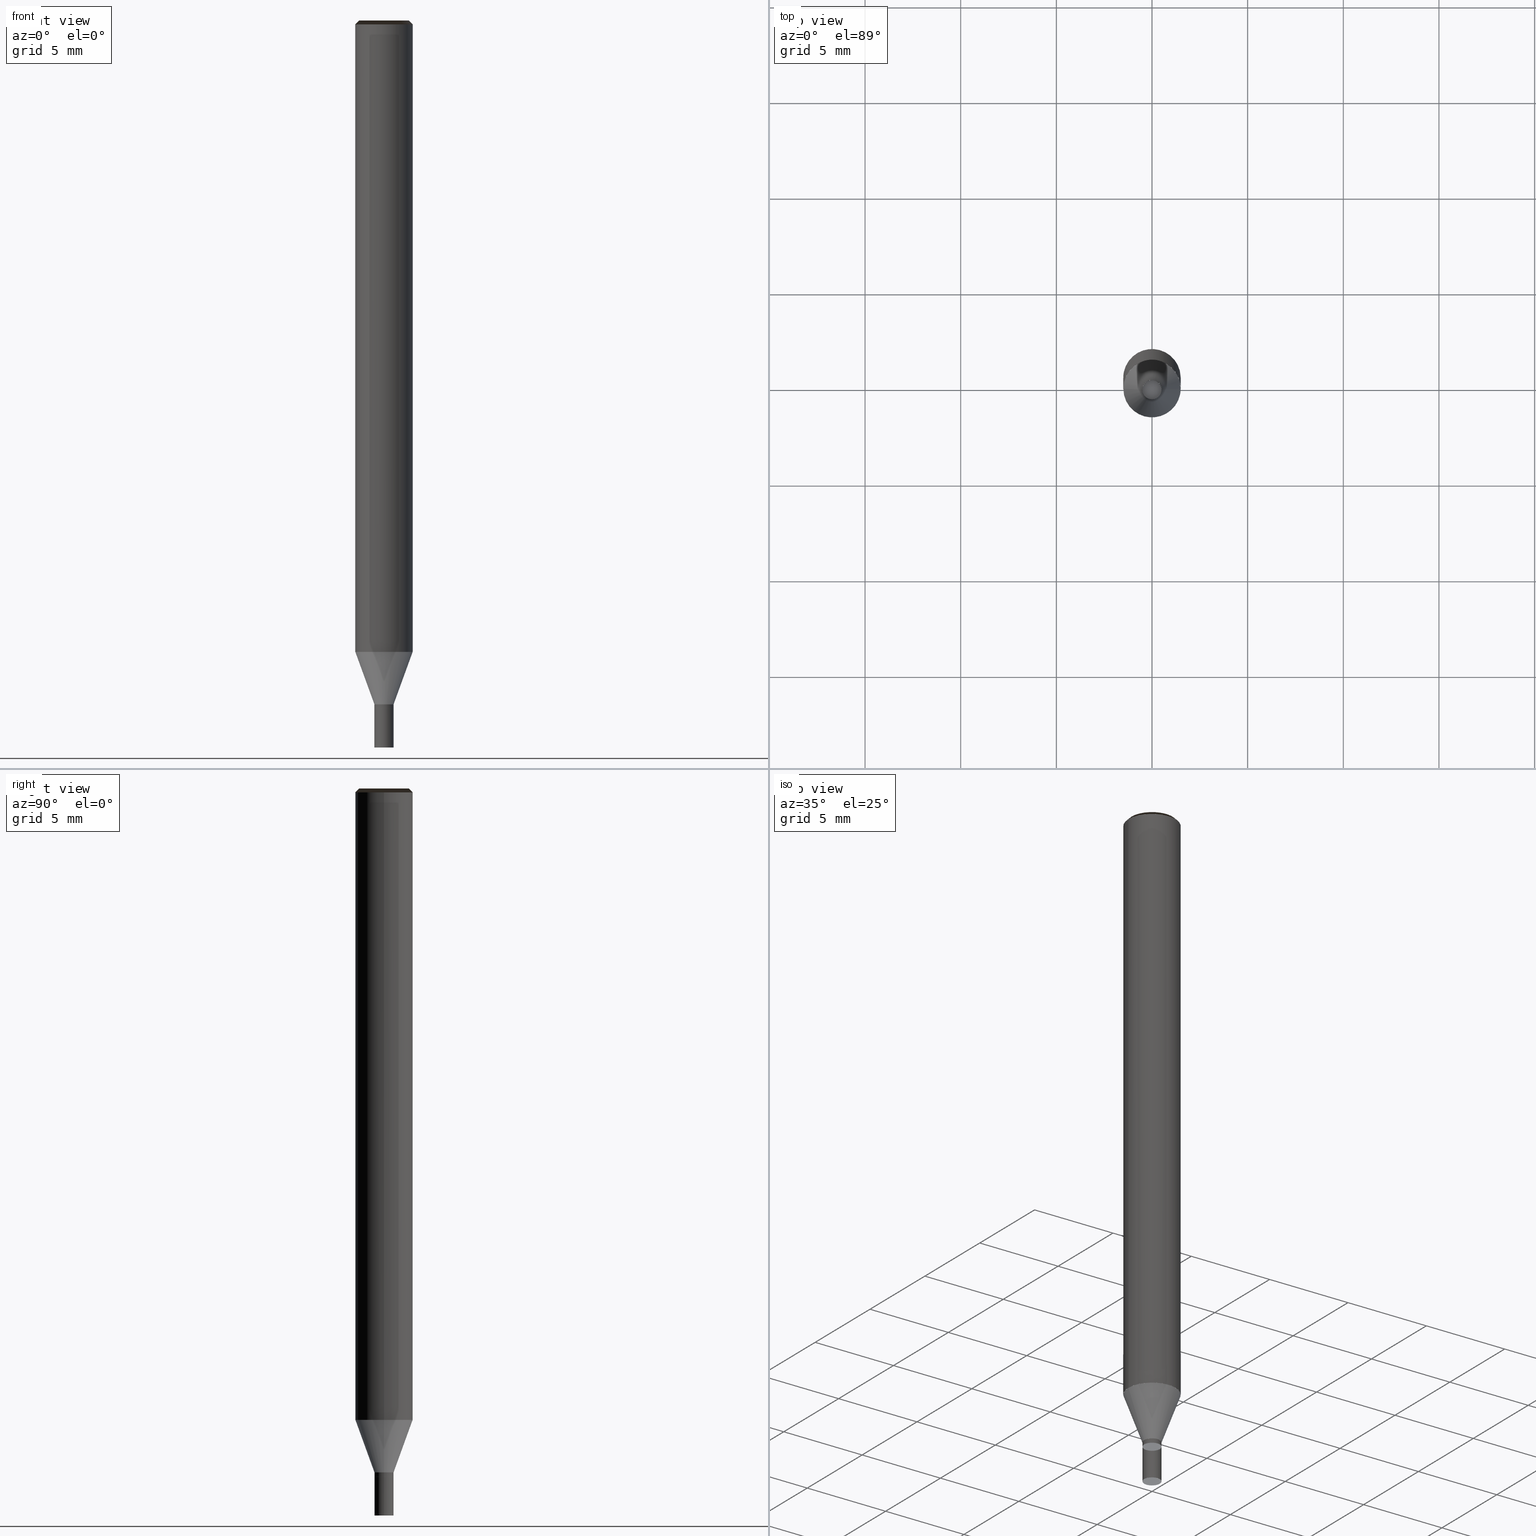
[diagram: canonical four-view strip — front | top / right | iso, engineering-drawing reading convention]
A machine part, canonical four-view strip (front | top / right | iso — engineering-drawing reading convention). The complete STEP part file that produces these views, byte-faithful:
ISO-10303-21;
HEADER;
/* Generated by ISBE GmbH (www.isbe.de) */
/* OPTION: using custom schema-name function */

FILE_DESCRIPTION(
/* description */ (''),
/* implementation_level */ '2;1');

FILE_NAME(
/*name*/ 'Drawing No  1070100',
/*time_stamp*/'2021-9-28T14:5:15',
/*author*/ ('ISBE GmbH'),
/*organization*/ ('ISBE GmbH'),
/*preprocessor_version*/ 'STEP IO v1.0',
/*originating_system*/ '',
/*authorisation*/ '');

FILE_SCHEMA (('AUTOMOTIVE_DESIGN'));
ENDSEC;

DATA;
#10=SHAPE_DEFINITION_REPRESENTATION(#11,#57);
#11=PRODUCT_DEFINITION_SHAPE('Document','',#13);
#12=PRODUCT_DEFINITION_CONTEXT('3D Mechanical Parts',#17,'design');
#13=PRODUCT_DEFINITION('A','First version',#14,#12);
#14=PRODUCT_DEFINITION_FORMATION_WITH_SPECIFIED_SOURCE('A','First version',#19,.MADE.);
#15=PRODUCT_RELATED_PRODUCT_CATEGORY('tool','tool',(#19));
#16=APPLICATION_PROTOCOL_DEFINITION('Draft International Standard', 'automotive_design',1999,#17);
#17=APPLICATION_CONTEXT('data for automotive mechanical design processes');
#18=PRODUCT_CONTEXT('3D Mechanical Parts',#17,'mechanical');
#19=PRODUCT('Document','Document','ISBE converted to STEP',(#18));
#20=(
LENGTH_UNIT()
NAMED_UNIT(*)
SI_UNIT(.MILLI.,.METRE.)
);
#21=(
NAMED_UNIT(*)
PLANE_ANGLE_UNIT()
SI_UNIT($,.RADIAN.)
);
#22=DIMENSIONAL_EXPONENTS(0.,0.,0.,0.,0.,0.,0.);
#23=PLANE_ANGLE_MEASURE_WITH_UNIT(PLANE_ANGLE_MEASURE(0.01745329252),#21);
#24=(
CONVERSION_BASED_UNIT('DEGREES',#23)
NAMED_UNIT(#22)
PLANE_ANGLE_UNIT()
);
#25=(
NAMED_UNIT(*)
SI_UNIT($,.STERADIAN.)
SOLID_ANGLE_UNIT()
);
#26=UNCERTAINTY_MEASURE_WITH_UNIT(LENGTH_MEASURE(0.001),#20, 'DISTANCE_ACCURACY_VALUE', 'Maximum model space distance between geometric entities at asserted connectivities');
#27=(
GEOMETRIC_REPRESENTATION_CONTEXT(3)
GLOBAL_UNCERTAINTY_ASSIGNED_CONTEXT((#26))
GLOBAL_UNIT_ASSIGNED_CONTEXT((#25,#24,#20))
REPRESENTATION_CONTEXT('ID1','3D')
);
#28=CARTESIAN_POINT('',(0.0,0.0,0.0));
#29=DIRECTION('',(1.0,0.0,0.0));
#30=DIRECTION('',(0.0,0.0,1.0));
#31=AXIS2_PLACEMENT_3D('',#28,#30,#29);
#32=CARTESIAN_POINT('',(0.0,0.0,0.0));
#33=DIRECTION('',(1.0,0.0,0.0));
#34=DIRECTION('',(0.0,0.0,1.0));
#35=AXIS2_PLACEMENT_3D('',#32,#34,#33);
#36=CARTESIAN_POINT('',(0.0,0.0,0.0));
#37=DIRECTION('',(1.0,0.0,0.0));
#38=DIRECTION('',(0.0,0.0,1.0));
#39=AXIS2_PLACEMENT_3D('',#36,#38,#37);
#40=CARTESIAN_POINT('',(0.0,0.0,0.0));
#41=DIRECTION('',(0.0,0.0,1.0));
#42=DIRECTION('',(1.0,0.0,0.0));
#43=AXIS2_PLACEMENT_3D('MCS',#40,#42,#41);
#44=CARTESIAN_POINT('',(0.0,0.0,33.0));
#45=DIRECTION('',(0.0,0.0,1.0));
#46=DIRECTION('',(1.0,0.0,0.0));
#47=AXIS2_PLACEMENT_3D('PCS',#44,#46,#45);
#48=CARTESIAN_POINT('',(0.0,0.0,-5.0));
#49=DIRECTION('',(0.0,0.0,1.0));
#50=DIRECTION('',(1.0,0.0,0.0));
#51=AXIS2_PLACEMENT_3D('CIP',#48,#50,#49);
#52=CARTESIAN_POINT('',(0.0,-0.5,-5.0));
#53=DIRECTION('',(0.0,0.0,1.0));
#54=DIRECTION('',(1.0,0.0,0.0));
#55=AXIS2_PLACEMENT_3D('CRP',#52,#54,#53);
#57=SHAPE_REPRESENTATION('Document',(#31,#35,#39,#43,#47,#51,#55),#27);
#58=DIRECTION('',(1.0,0.0,0.0));
#59=DIRECTION('',(0.0,0.0,1.0));
#60=CARTESIAN_POINT('',(-0.0099979998,-0.0002,-5.0));
#61=CARTESIAN_POINT('',(-0.009957388068,-0.002230180448,-5.0));
#62=CARTESIAN_POINT('',(-0.009642194725,-0.017986695326,-5.0));
#63=CARTESIAN_POINT('',(-0.009419342894,-0.029127058161,-5.0));
#64=CARTESIAN_POINT('',(-0.009206552389,-0.039764455291,-5.0));
#65=CARTESIAN_POINT('',(-0.00899738358,-0.050220803835,-5.0));
#66=CARTESIAN_POINT('',(-0.008789953749,-0.06059022086,-5.0));
#67=CARTESIAN_POINT('',(-0.008583497652,-0.070910960961,-5.0));
#68=CARTESIAN_POINT('',(-0.008377643043,-0.081201632637,-5.0));
#69=CARTESIAN_POINT('',(-0.008172186465,-0.09147240681,-5.0));
#70=CARTESIAN_POINT('',(-0.007967007117,-0.101729322195,-5.0));
#71=CARTESIAN_POINT('',(-0.00776202868,-0.111976194026,-5.0));
#72=CARTESIAN_POINT('',(-0.007557200537,-0.122215552706,-5.0));
#73=CARTESIAN_POINT('',(-0.007352487778,-0.132449143356,-5.0));
#74=CARTESIAN_POINT('',(-0.007147865539,-0.14267820886,-5.0));
#75=CARTESIAN_POINT('',(-0.00694331563,-0.152903658591,-5.0));
#76=CARTESIAN_POINT('',(-0.006738824433,-0.16312617334,-5.0));
#77=CARTESIAN_POINT('',(-0.006534381548,-0.173346272951,-5.0));
#78=CARTESIAN_POINT('',(-0.006329978897,-0.183564361258,-5.0));
#79=CARTESIAN_POINT('',(-0.006125610109,-0.19378075676,-5.0));
#80=CARTESIAN_POINT('',(-0.005921270092,-0.20399571404,-5.0));
#81=CARTESIAN_POINT('',(-0.005716954724,-0.214209439044,-5.0));
#82=CARTESIAN_POINT('',(-0.005512660639,-0.224422100169,-5.0));
#83=CARTESIAN_POINT('',(-0.005308385054,-0.234633836452,-5.0));
#84=CARTESIAN_POINT('',(-0.005104125653,-0.244844763705,-5.0));
#85=CARTESIAN_POINT('',(-0.004899880491,-0.255054979171,-5.0));
#86=CARTESIAN_POINT('',(-0.004695647921,-0.265264565103,-5.0));
#87=CARTESIAN_POINT('',(-0.004491426544,-0.275473591549,-5.0));
#88=CARTESIAN_POINT('',(-0.004287215158,-0.285682118529,-5.0));
#89=CARTESIAN_POINT('',(-0.004083012729,-0.295890197777,-5.0));
#90=CARTESIAN_POINT('',(-0.003878818359,-0.306097874114,-5.0));
#91=CARTESIAN_POINT('',(-0.003674631268,-0.316305186575,-5.0));
#92=CARTESIAN_POINT('',(-0.003470450773,-0.326512169305,-5.0));
#93=CARTESIAN_POINT('',(-0.003266276274,-0.336718852309,-5.0));
#94=CARTESIAN_POINT('',(-0.003062107242,-0.346925262055,-5.0));
#95=CARTESIAN_POINT('',(-0.002857943206,-0.357131421985,-5.0));
#96=CARTESIAN_POINT('',(-0.002653783751,-0.367337352933,-5.0));
#97=CARTESIAN_POINT('',(-0.002449628505,-0.377543073478,-5.0));
#98=CARTESIAN_POINT('',(-0.002245477135,-0.387748600244,-5.0));
#99=CARTESIAN_POINT('',(-0.002041329344,-0.397953948145,-5.0));
#100=CARTESIAN_POINT('',(-0.001837184862,-0.408159130606,-5.0));
#101=CARTESIAN_POINT('',(-0.001633043447,-0.418364159738,-5.0));
#102=CARTESIAN_POINT('',(-0.00142890488,-0.428569046501,-5.0));
#103=CARTESIAN_POINT('',(-0.001224768962,-0.438773800831,-5.0));
#104=CARTESIAN_POINT('',(-0.001020635512,-0.448978431764,-5.0));
#105=CARTESIAN_POINT('',(-0.000816504367,-0.459182947529,-5.0));
#106=CARTESIAN_POINT('',(-0.000612375374,-0.469387355642,-5.0));
#107=CARTESIAN_POINT('',(-0.000408248398,-0.479591662976,-5.0));
#108=CARTESIAN_POINT('',(-0.000204123312,-0.489795875833,-5.0));
#109=CARTESIAN_POINT('',(0.0,-0.5,-5.0));
#110=CARTESIAN_POINT('',(0.028148537708,-0.499207031025,-4.951219512195));
#111=CARTESIAN_POINT('',(0.056207791747,-0.4968306393,-4.90243902439));
#112=CARTESIAN_POINT('',(0.084088761646,-0.492878362443,-4.853658536585));
#113=CARTESIAN_POINT('',(0.111703012429,-0.487362736588,-4.80487804878));
#114=CARTESIAN_POINT('',(0.138962955119,-0.480301256614,-4.756097560976));
#115=CARTESIAN_POINT('',(0.16578212456,-0.471716320659,-4.707317073171));
#116=CARTESIAN_POINT('',(0.192075453676,-0.461635159076,-4.658536585366));
#117=CARTESIAN_POINT('',(0.21775954329,-0.450089748057,-4.609756097561));
#118=CARTESIAN_POINT('',(0.242752926656,-0.437116708214,-4.560975609756));
#119=CARTESIAN_POINT('',(0.266976327865,-0.422757188419,-4.512195121951));
#120=CARTESIAN_POINT('',(0.290352913294,-0.407056735286,-4.463414634146));
#121=CARTESIAN_POINT('',(0.312808535315,-0.390065148705,-4.414634146341));
#122=CARTESIAN_POINT('',(0.334271967481,-0.37183632388,-4.365853658537));
#123=CARTESIAN_POINT('',(0.35467513045,-0.35242808038,-4.317073170732));
#124=CARTESIAN_POINT('',(0.37395330792,-0.331901978746,-4.268292682927));
#125=CARTESIAN_POINT('',(0.392045351906,-0.310323125225,-4.219512195122));
#126=CARTESIAN_POINT('',(0.408893876688,-0.287759965261,-4.170731707317));
#127=CARTESIAN_POINT('',(0.424445440837,-0.264284066399,-4.121951219512));
#128=CARTESIAN_POINT('',(0.438650716722,-0.239969891276,-4.073170731707));
#129=CARTESIAN_POINT('',(0.45146464697,-0.214894561439,-4.024390243902));
#130=CARTESIAN_POINT('',(0.462846587385,-0.189137612721,-3.975609756098));
#131=CARTESIAN_POINT('',(0.472760435865,-0.162780742967,-3.926829268293));
#132=CARTESIAN_POINT('',(0.481174746911,-0.135907552898,-3.878048780488));
#133=CARTESIAN_POINT('',(0.488062831375,-0.108603280937,-3.829268292683));
#134=CARTESIAN_POINT('',(0.493402841106,-0.080954532847,-3.780487804878));
#135=CARTESIAN_POINT('',(0.497177838257,-0.053049007026,-3.731707317073));
#136=CARTESIAN_POINT('',(0.499375849004,-0.024975216337,-3.682926829268));
#137=CARTESIAN_POINT('',(0.499989901532,0.003177792638,-3.634146341463));
#138=CARTESIAN_POINT('',(0.499018048141,0.03132072205,-3.585365853659));
#139=CARTESIAN_POINT('',(0.496463371429,0.059364306018,-3.536585365854));
#140=CARTESIAN_POINT('',(0.492333974515,0.087219593774,-3.487804878049));
#141=CARTESIAN_POINT('',(0.486642955333,0.114798231803,-3.439024390244));
#142=CARTESIAN_POINT('',(0.479408365088,0.142012744088,-3.390243902439));
#143=CARTESIAN_POINT('',(0.470653151005,0.168776809572,-3.341463414634));
#144=CARTESIAN_POINT('',(0.460405083535,0.195005535961,-3.292682926829));
#145=CARTESIAN_POINT('',(0.448696668276,0.22061572899,-3.243902439024));
#146=CARTESIAN_POINT('',(0.435565042869,0.245526156306,-3.19512195122));
#147=CARTESIAN_POINT('',(0.4210518592,0.269657805124,-3.146341463415));
#148=CARTESIAN_POINT('',(0.405203151287,0.292934132848,-3.09756097561));
#149=CARTESIAN_POINT('',(0.388069189263,0.315281309857,-3.048780487805));
#150=CARTESIAN_POINT('',(0.36970431993,0.336628453677,-3.0));
#151=CARTESIAN_POINT('',(0.005172204981,-0.008558521814,-5.0));
#152=CARTESIAN_POINT('',(0.006910086957,-0.007508260798,-5.0));
#153=CARTESIAN_POINT('',(0.020398032445,0.000642962083,-5.0));
#154=CARTESIAN_POINT('',(0.029934443752,0.006406138848,-5.0));
#155=CARTESIAN_POINT('',(0.039040304644,0.011909119395,-5.0));
#156=CARTESIAN_POINT('',(0.04799118371,0.01731843917,-5.0));
#157=CARTESIAN_POINT('',(0.05686764736,0.022682787185,-5.0));
#158=CARTESIAN_POINT('',(0.065702442425,0.02802195346,-5.0));
#159=CARTESIAN_POINT('',(0.074511498214,0.033345564619,-5.0));
#160=CARTESIAN_POINT('',(0.083303521275,0.038658882322,-5.0));
#161=CARTESIAN_POINT('',(0.092083680889,0.043965030542,-5.0));
#162=CARTESIAN_POINT('',(0.100855242986,0.049265982991,-5.0));
#163=CARTESIAN_POINT('',(0.109620373649,0.054563048706,-5.0));
#164=CARTESIAN_POINT('',(0.118380566744,0.059857130482,-5.0));
#165=CARTESIAN_POINT('',(0.127136886209,0.065148871291,-5.0));
#166=CARTESIAN_POINT('',(0.135890110486,0.070438741573,-5.0));
#167=CARTESIAN_POINT('',(0.144640822351,0.075727093519,-5.0));
#168=CARTESIAN_POINT('',(0.153389466801,0.081014196057,-5.0));
#169=CARTESIAN_POINT('',(0.162136389528,0.086300258099,-5.0));
#170=CARTESIAN_POINT('',(0.170881863173,0.091585444412,-5.0));
#171=CARTESIAN_POINT('',(0.179626105668,0.096869886698,-5.0));
#172=CARTESIAN_POINT('',(0.188369293305,0.102153691498,-5.0));
#173=CARTESIAN_POINT('',(0.197111570236,0.107436945929,-5.0));
#174=CARTESIAN_POINT('',(0.205853055482,0.112719721916,-5.0));
#175=CARTESIAN_POINT('',(0.214593848178,0.118002079373,-5.0));
#176=CARTESIAN_POINT('',(0.223334031569,0.123284068605,-5.0));
#177=CARTESIAN_POINT('',(0.232073676064,0.128565732165,-5.0));
#178=CARTESIAN_POINT('',(0.240812841625,0.133847106288,-5.0));
#179=CARTESIAN_POINT('',(0.249551579632,0.139128222026,-5.0));
#180=CARTESIAN_POINT('',(0.25828993437,0.144409106141,-5.0));
#181=CARTESIAN_POINT('',(0.267027944207,0.149689781822,-5.0));
#182=CARTESIAN_POINT('',(0.275765642557,0.15497026926,-5.0));
#183=CARTESIAN_POINT('',(0.28450305865,0.16025058612,-5.0));
#184=CARTESIAN_POINT('',(0.29324021817,0.165530747925,-5.0));
#185=CARTESIAN_POINT('',(0.301977143775,0.170810768367,-5.0));
#186=CARTESIAN_POINT('',(0.310713855531,0.176090659573,-5.0));
#187=CARTESIAN_POINT('',(0.319450371274,0.181370432322,-5.0));
#188=CARTESIAN_POINT('',(0.328186706908,0.186650096224,-5.0));
#189=CARTESIAN_POINT('',(0.336922876661,0.191929659879,-5.0));
#190=CARTESIAN_POINT('',(0.345658893302,0.197209131004,-5.0));
#191=CARTESIAN_POINT('',(0.354394768322,0.202488516541,-5.0));
#192=CARTESIAN_POINT('',(0.36313051209,0.207767822759,-5.0));
#193=CARTESIAN_POINT('',(0.371866133985,0.213047055325,-5.0));
#194=CARTESIAN_POINT('',(0.380601642516,0.218326219381,-5.0));
#195=CARTESIAN_POINT('',(0.389337045415,0.2236053196,-5.0));
#196=CARTESIAN_POINT('',(0.398072349728,0.228884360241,-5.0));
#197=CARTESIAN_POINT('',(0.406807561888,0.23416334519,-5.0));
#198=CARTESIAN_POINT('',(0.415542687779,0.239442278004,-5.0));
#199=CARTESIAN_POINT('',(0.424277732796,0.244721161943,-5.0));
#200=CARTESIAN_POINT('',(0.433012701892,0.25,-5.0));
#201=CARTESIAN_POINT('',(0.418251701762,0.273980864247,-4.951219512195));
#202=CARTESIAN_POINT('',(0.402164059139,0.297092695193,-4.90243902439));
#203=CARTESIAN_POINT('',(0.384800802028,0.31926218498,-4.853658536585));
#204=CARTESIAN_POINT('',(0.366217004528,0.340419014737,-4.80487804878));
#205=CARTESIAN_POINT('',(0.346471612138,0.360496077625,-4.756097560976));
#206=CARTESIAN_POINT('',(0.32562725479,0.379429691692,-4.707317073171));
#207=CARTESIAN_POINT('',(0.303750048202,0.397159801865,-4.658536585366));
#208=CARTESIAN_POINT('',(0.280909384155,0.413630170434,-4.609756097561));
#209=CARTESIAN_POINT('',(0.257177710404,0.428788555434,-4.560975609756));
#210=CARTESIAN_POINT('',(0.23263030087,0.44258687635,-4.512195121951));
#211=CARTESIAN_POINT('',(0.207345016892,0.454981366618,-4.463414634146));
#212=CARTESIAN_POINT('',(0.181402060252,0.465932712456,-4.414634146341));
#213=CARTESIAN_POINT('',(0.154883718789,0.475406177551,-4.365853658537));
#214=CARTESIAN_POINT('',(0.127874105391,0.48337171325,-4.317073170732));
#215=CARTESIAN_POINT('',(0.1004588912,0.489804053861,-4.268292682927));
#216=CARTESIAN_POINT('',(0.072725033873,0.494682796798,-4.219512195122));
#217=CARTESIAN_POINT('',(0.044760501764,0.497992467294,-4.170731707317));
#218=CARTESIAN_POINT('',(0.016653994898,0.499722567485,-4.121951219512));
#219=CARTESIAN_POINT('',(-0.011505336373,0.499867609708,-4.073170731707));
#220=CARTESIAN_POINT('',(-0.039628174144,0.498427133906,-4.024390243902));
#221=CARTESIAN_POINT('',(-0.067625316266,0.495405709091,-3.975609756098));
#222=CARTESIAN_POINT('',(-0.095407959276,0.490812918847,-3.926829268293));
#223=CARTESIAN_POINT('',(-0.12288798008,0.484663330934,-3.878048780488));
#224=CARTESIAN_POINT('',(-0.149978215461,0.476976451082,-3.829268292683));
#225=CARTESIAN_POINT('',(-0.176592738556,0.467776661121,-3.780487804878));
#226=CARTESIAN_POINT('',(-0.202647131399,0.457093141642,-3.731707317073));
#227=CARTESIAN_POINT('',(-0.228058752689,0.444959779443,-3.682926829268));
#228=CARTESIAN_POINT('',(-0.252746999919,0.431415060043,-3.634146341463));
#229=CARTESIAN_POINT('',(-0.27663356503,0.416501945612,-3.585365853659));
#230=CARTESIAN_POINT('',(-0.299642682804,0.400267738697,-3.536585365854));
#231=CARTESIAN_POINT('',(-0.321701371174,0.382763932189,-3.487804878049));
#232=CARTESIAN_POINT('',(-0.342739662718,0.364046045989,-3.439024390244));
#233=CARTESIAN_POINT('',(-0.362690826585,0.344173450909,-3.390243902439));
#234=CARTESIAN_POINT('',(-0.381491580161,0.323209180356,-3.341463414634));
#235=CARTESIAN_POINT('',(-0.399082289788,0.301219730392,-3.292682926829));
#236=CARTESIAN_POINT('',(-0.415407159918,0.278274848825,-3.243902439024));
#237=CARTESIAN_POINT('',(-0.430414410089,0.254447313972,-3.19512195122));
#238=CARTESIAN_POINT('',(-0.444056439166,0.229812703816,-3.146341463415));
#239=CARTESIAN_POINT('',(-0.456289976325,0.204449156284,-3.09756097561));
#240=CARTESIAN_POINT('',(-0.467076218306,0.178437121399,-3.048780487805));
#241=CARTESIAN_POINT('',(-0.476380952486,0.15185910611,-3.0));
#242=CARTESIAN_POINT('',(0.004825794819,0.008758521814,-5.0));
#243=CARTESIAN_POINT('',(0.003047301111,0.009738441246,-5.0));
#244=CARTESIAN_POINT('',(-0.01075583772,0.017343733243,-5.0));
#245=CARTESIAN_POINT('',(-0.020515100858,0.022720919314,-5.0));
#246=CARTESIAN_POINT('',(-0.029833752255,0.027855335895,-5.0));
#247=CARTESIAN_POINT('',(-0.03899380013,0.032902364666,-5.0));
#248=CARTESIAN_POINT('',(-0.048077693611,0.037907433675,-5.0));
#249=CARTESIAN_POINT('',(-0.057118944773,0.0428890075,-5.0));
#250=CARTESIAN_POINT('',(-0.06613385517,0.047856068018,-5.0));
#251=CARTESIAN_POINT('',(-0.075131334811,0.052813524488,-5.0));
#252=CARTESIAN_POINT('',(-0.084116673772,0.057764291653,-5.0));
#253=CARTESIAN_POINT('',(-0.093093214306,0.062710211035,-5.0));
#254=CARTESIAN_POINT('',(-0.102063173112,0.067652503999,-5.0));
#255=CARTESIAN_POINT('',(-0.111028078967,0.072592012874,-5.0));
#256=CARTESIAN_POINT('',(-0.11998902067,0.07752933757,-5.0));
#257=CARTESIAN_POINT('',(-0.128946794856,0.082464917018,-5.0));
#258=CARTESIAN_POINT('',(-0.137901997918,0.08739907982,-5.0));
#259=CARTESIAN_POINT('',(-0.146855085253,0.092332076894,-5.0));
#260=CARTESIAN_POINT('',(-0.15580641063,0.097264103159,-5.0));
#261=CARTESIAN_POINT('',(-0.164756253064,0.102195312348,-5.0));
#262=CARTESIAN_POINT('',(-0.173704835576,0.107125827342,-5.0));
#263=CARTESIAN_POINT('',(-0.18265233858,0.112055747546,-5.0));
#264=CARTESIAN_POINT('',(-0.191598909597,0.11698515424,-5.0));
#265=CARTESIAN_POINT('',(-0.200544670428,0.121914114536,-5.0));
#266=CARTESIAN_POINT('',(-0.209489722525,0.126842684332,-5.0));
#267=CARTESIAN_POINT('',(-0.218434151078,0.131770910566,-5.0));
#268=CARTESIAN_POINT('',(-0.227378028143,0.136698832939,-5.0));
#269=CARTESIAN_POINT('',(-0.236321415081,0.141626485261,-5.0));
#270=CARTESIAN_POINT('',(-0.245264364474,0.146553896503,-5.0));
#271=CARTESIAN_POINT('',(-0.254206921641,0.151481091635,-5.0));
#272=CARTESIAN_POINT('',(-0.263149125848,0.156408092293,-5.0));
#273=CARTESIAN_POINT('',(-0.272091011289,0.161334917315,-5.0));
#274=CARTESIAN_POINT('',(-0.281032607876,0.166261583185,-5.0));
#275=CARTESIAN_POINT('',(-0.289973941895,0.171188104384,-5.0));
#276=CARTESIAN_POINT('',(-0.298915036533,0.176114493688,-5.0));
#277=CARTESIAN_POINT('',(-0.307855912325,0.181040762411,-5.0));
#278=CARTESIAN_POINT('',(-0.316796587523,0.185966920611,-5.0));
#279=CARTESIAN_POINT('',(-0.325737078402,0.190892977254,-5.0));
#280=CARTESIAN_POINT('',(-0.334677399525,0.195818940365,-5.0));
#281=CARTESIAN_POINT('',(-0.343617563958,0.200744817142,-5.0));
#282=CARTESIAN_POINT('',(-0.352557583461,0.205670614065,-5.0));
#283=CARTESIAN_POINT('',(-0.361497468643,0.210596336979,-5.0));
#284=CARTESIAN_POINT('',(-0.370437229106,0.215521991176,-5.0));
#285=CARTESIAN_POINT('',(-0.379376873554,0.22044758145,-5.0));
#286=CARTESIAN_POINT('',(-0.388316409903,0.225373112163,-5.0));
#287=CARTESIAN_POINT('',(-0.397255845361,0.230298587288,-5.0));
#288=CARTESIAN_POINT('',(-0.406195186514,0.235224010452,-5.0));
#289=CARTESIAN_POINT('',(-0.415134439381,0.240149384972,-5.0));
#290=CARTESIAN_POINT('',(-0.424073609484,0.24507471389,-5.0));
#291=CARTESIAN_POINT('',(-0.433012701892,0.25,-5.0));
#292=CARTESIAN_POINT('',(-0.446400239469,0.225226166778,-4.951219512195));
#293=CARTESIAN_POINT('',(-0.458371850885,0.199737944106,-4.90243902439));
#294=CARTESIAN_POINT('',(-0.468889563675,0.173616177463,-4.853658536585));
#295=CARTESIAN_POINT('',(-0.477920016957,0.146943721851,-4.80487804878));
#296=CARTESIAN_POINT('',(-0.485434567256,0.119805178989,-4.756097560976));
#297=CARTESIAN_POINT('',(-0.491409379351,0.092286628967,-4.707317073171));
#298=CARTESIAN_POINT('',(-0.495825501878,0.064475357211,-4.658536585366));
#299=CARTESIAN_POINT('',(-0.498668927445,0.036459577623,-4.609756097561));
#300=CARTESIAN_POINT('',(-0.49993063706,0.00832815278,-4.560975609756));
#301=CARTESIAN_POINT('',(-0.499606628736,-0.019829687931,-4.512195121951));
#302=CARTESIAN_POINT('',(-0.497697930186,-0.047924631332,-4.463414634146));
#303=CARTESIAN_POINT('',(-0.494210595567,-0.07586756375,-4.414634146341));
#304=CARTESIAN_POINT('',(-0.48915568627,-0.103569853672,-4.365853658537));
#305=CARTESIAN_POINT('',(-0.482549235841,-0.13094363287,-4.317073170732));
#306=CARTESIAN_POINT('',(-0.474412199121,-0.157902075115,-4.268292682927));
#307=CARTESIAN_POINT('',(-0.464770385779,-0.184359671574,-4.219512195122));
#308=CARTESIAN_POINT('',(-0.453654378452,-0.210232502033,-4.170731707317));
#309=CARTESIAN_POINT('',(-0.441099435736,-0.235438501086,-4.121951219512));
#310=CARTESIAN_POINT('',(-0.42714538035,-0.259897718432,-4.073170731707));
#311=CARTESIAN_POINT('',(-0.411836472826,-0.283532572468,-4.024390243902));
#312=CARTESIAN_POINT('',(-0.39522127112,-0.30626809637,-3.975609756098));
#313=CARTESIAN_POINT('',(-0.377352476589,-0.32803217588,-3.926829268293));
#314=CARTESIAN_POINT('',(-0.358286766832,-0.348755778036,-3.878048780488));
#315=CARTESIAN_POINT('',(-0.338084615914,-0.368373170145,-3.829268292683));
#316=CARTESIAN_POINT('',(-0.31681010255,-0.386822128273,-3.780487804878));
#317=CARTESIAN_POINT('',(-0.294530706858,-0.404044134616,-3.731707317073));
#318=CARTESIAN_POINT('',(-0.271317096315,-0.419984563106,-3.682926829268));
#319=CARTESIAN_POINT('',(-0.247242901613,-0.434592852681,-3.634146341463));
#320=CARTESIAN_POINT('',(-0.22238448311,-0.447822667662,-3.585365853659));
#321=CARTESIAN_POINT('',(-0.196820688625,-0.459632044715,-3.536585365854));
#322=CARTESIAN_POINT('',(-0.170632603341,-0.469983525963,-3.487804878049));
#323=CARTESIAN_POINT('',(-0.143903292615,-0.478844277792,-3.439024390244));
#324=CARTESIAN_POINT('',(-0.116717538503,-0.486186194997,-3.390243902439));
#325=CARTESIAN_POINT('',(-0.089161570844,-0.491985989927,-3.341463414634));
#326=CARTESIAN_POINT('',(-0.061322793747,-0.496225266353,-3.292682926829));
#327=CARTESIAN_POINT('',(-0.033289508358,-0.498890577816,-3.243902439024));
#328=CARTESIAN_POINT('',(-0.00515063278,-0.499973470278,-3.19512195122));
#329=CARTESIAN_POINT('',(0.023004579966,-0.49947050894,-3.146341463415));
#330=CARTESIAN_POINT('',(0.051086825039,-0.497383289132,-3.09756097561));
#331=CARTESIAN_POINT('',(0.079007029043,-0.493718431256,-3.048780487805));
#332=CARTESIAN_POINT('',(0.106676632555,-0.488487559787,-3.0));
#333=CARTESIAN_POINT('',(0.0,0.0,-5.0));
#334=CARTESIAN_POINT('',(0.5,0.0,-5.0));
#335=CARTESIAN_POINT('',(0.5,0.5,-5.0));
#336=CARTESIAN_POINT('',(0.0,0.5,-5.0));
#337=CARTESIAN_POINT('',(-0.5,0.5,-5.0));
#338=CARTESIAN_POINT('',(-0.5,0.0,-5.0));
#339=CARTESIAN_POINT('',(0.5,0.0,-3.0));
#340=CARTESIAN_POINT('',(0.5,0.5,-3.0));
#341=CARTESIAN_POINT('',(0.0,0.5,-3.0));
#342=CARTESIAN_POINT('',(-0.5,0.5,-3.0));
#343=CARTESIAN_POINT('',(-0.5,0.0,-3.0));
#344=CARTESIAN_POINT('',(0.0,0.0,-3.0));
#345=CARTESIAN_POINT('',(-0.5,-0.5,-5.0));
#346=CARTESIAN_POINT('',(0.5,-0.5,-5.0));
#347=CARTESIAN_POINT('',(-0.5,-0.5,-3.0));
#348=CARTESIAN_POINT('',(0.0,-0.5,-3.0));
#349=CARTESIAN_POINT('',(0.5,-0.5,-3.0));
#350=CARTESIAN_POINT('',(0.5,0.0,-2.747477419455));
#351=CARTESIAN_POINT('',(0.5,0.5,-2.747477419455));
#352=CARTESIAN_POINT('',(0.0,0.5,-2.747477419455));
#353=CARTESIAN_POINT('',(-0.5,0.5,-2.747477419455));
#354=CARTESIAN_POINT('',(-0.5,0.0,-2.747477419455));
#355=CARTESIAN_POINT('',(1.5,0.0,0.0));
#356=CARTESIAN_POINT('',(1.5,1.5,0.0));
#357=CARTESIAN_POINT('',(0.0,1.5,0.0));
#358=CARTESIAN_POINT('',(-1.5,1.5,0.0));
#359=CARTESIAN_POINT('',(-1.5,0.0,0.0));
#360=CARTESIAN_POINT('',(1.5,0.0,32.8));
#361=CARTESIAN_POINT('',(1.5,1.5,32.8));
#362=CARTESIAN_POINT('',(0.0,1.5,32.8));
#363=CARTESIAN_POINT('',(-1.5,1.5,32.8));
#364=CARTESIAN_POINT('',(-1.5,0.0,32.8));
#365=CARTESIAN_POINT('',(1.3,0.0,33.0));
#366=CARTESIAN_POINT('',(1.3,1.3,33.0));
#367=CARTESIAN_POINT('',(0.0,1.3,33.0));
#368=CARTESIAN_POINT('',(-1.3,1.3,33.0));
#369=CARTESIAN_POINT('',(-1.3,0.0,33.0));
#370=CARTESIAN_POINT('',(0.0,0.0,33.0));
#371=CARTESIAN_POINT('',(-0.5,-0.5,-2.747477419455));
#372=CARTESIAN_POINT('',(0.0,-0.5,-2.747477419455));
#373=CARTESIAN_POINT('',(0.5,-0.5,-2.747477419455));
#374=CARTESIAN_POINT('',(-1.5,-1.5,0.0));
#375=CARTESIAN_POINT('',(0.0,-1.5,0.0));
#376=CARTESIAN_POINT('',(1.5,-1.5,0.0));
#377=CARTESIAN_POINT('',(-1.5,-1.5,32.8));
#378=CARTESIAN_POINT('',(0.0,-1.5,32.8));
#379=CARTESIAN_POINT('',(1.5,-1.5,32.8));
#380=CARTESIAN_POINT('',(-1.3,-1.3,33.0));
#381=CARTESIAN_POINT('',(0.0,-1.3,33.0));
#382=CARTESIAN_POINT('',(1.3,-1.3,33.0));
#383=(
BOUNDED_CURVE()
B_SPLINE_CURVE(1,(#60,#61,#62,#63,#64,#65,#66,#67,#68,#69,#70,#71,#72,#73,#74,#75,#76,#77,#78,#79,#80,#81,#82,#83,#84,#85,#86,#87,#88,#89,#90,#91,#92,#93,#94,#95,#96,#97,#98,#99,#100,#101,#102,#103,#104,#105,#106,#107,#108,#109,#110,#111,#112,#113,#114,#115,#116,#117,#118,#119,#120,#121,#122,#123,#124,#125,#126,#127,#128,#129,#130,#131,#132,#133,#134,#135,#136,#137,#138,#139,#140,#141,#142,#143,#144,#145,#146,#147,#148,#149,#150),.UNSPECIFIED.,.F.,.F.)
B_SPLINE_CURVE_WITH_KNOTS((2,1,1,1,1,1,1,1,1,1,1,1,1,1,1,1,1,1,1,1,1,1,1,1,1,1,1,1,1,1,1,1,1,1,1,1,1,1,1,1,1,1,1,1,1,1,1,1,1,1,1,1,1,1,1,1,1,1,1,1,1,1,1,1,1,1,1,1,1,1,1,1,1,1,1,1,1,1,1,1,1,1,1,1,1,1,1,1,1,1,2),
(0.0,0.000722828106,0.006332798304,0.010299227682,0.014086580491,0.017809472524,0.021501413346,0.025176023171,0.028839927395,0.032496747287,0.036148632877,0.039796942547,0.043442577225,0.047086158246,0.050728128128,0.054368810645,0.058008448188,0.061647225842,0.065285287388,0.068922746226,0.072559692998,0.076196201028,0.079832330273,0.083468130237,0.087103642152,0.090738900642,0.094373934992,0.098008770141,0.10164342746,0.105277925368,0.108912279823,0.112546504723,0.116180612226,0.119814613013,0.123448516509,0.127082331061,0.130716064085,0.134349722197,0.137983311316,0.141616836752,0.145250303284,0.148883715225,0.152517076476,0.156150390576,0.159783660741,0.163416889902,0.167050080734,0.170683235685,0.174316356998,0.177949446734,0.197999460228,0.218049473722,0.238099487217,0.258149500711,0.278199514205,0.2982495277,0.318299541194,0.338349554688,0.358399568182,0.378449581677,0.398499595171,0.418549608665,0.43859962216,0.458649635654,0.478699649148,0.498749662643,0.518799676137,0.538849689631,0.558899703125,0.57894971662,0.598999730114,0.619049743608,0.639099757103,0.659149770597,0.679199784091,0.699249797586,0.71929981108,0.739349824574,0.759399838068,0.779449851563,0.799499865057,0.819549878551,0.839599892046,0.85964990554,0.879699919034,0.899749932529,0.919799946023,0.939849959517,0.959899973011,0.979949986506,1.0),.UNSPECIFIED.)
CURVE()
GEOMETRIC_REPRESENTATION_ITEM()
RATIONAL_B_SPLINE_CURVE((1.0,1.0,1.0,1.0,1.0,1.0,1.0,1.0,1.0,1.0,1.0,1.0,1.0,1.0,1.0,1.0,1.0,1.0,1.0,1.0,1.0,1.0,1.0,1.0,1.0,1.0,1.0,1.0,1.0,1.0,1.0,1.0,1.0,1.0,1.0,1.0,1.0,1.0,1.0,1.0,1.0,1.0,1.0,1.0,1.0,1.0,1.0,1.0,1.0,1.0,1.0,1.0,1.0,1.0,1.0,1.0,1.0,1.0,1.0,1.0,1.0,1.0,1.0,1.0,1.0,1.0,1.0,1.0,1.0,1.0,1.0,1.0,1.0,1.0,1.0,1.0,1.0,1.0,1.0,1.0,1.0,1.0,1.0,1.0,1.0,1.0,1.0,1.0,1.0,1.0,1.0))
REPRESENTATION_ITEM('')
);
#384=(
BOUNDED_CURVE()
B_SPLINE_CURVE(1,(#151,#152,#153,#154,#155,#156,#157,#158,#159,#160,#161,#162,#163,#164,#165,#166,#167,#168,#169,#170,#171,#172,#173,#174,#175,#176,#177,#178,#179,#180,#181,#182,#183,#184,#185,#186,#187,#188,#189,#190,#191,#192,#193,#194,#195,#196,#197,#198,#199,#200,#201,#202,#203,#204,#205,#206,#207,#208,#209,#210,#211,#212,#213,#214,#215,#216,#217,#218,#219,#220,#221,#222,#223,#224,#225,#226,#227,#228,#229,#230,#231,#232,#233,#234,#235,#236,#237,#238,#239,#240,#241),.UNSPECIFIED.,.F.,.F.)
B_SPLINE_CURVE_WITH_KNOTS((2,1,1,1,1,1,1,1,1,1,1,1,1,1,1,1,1,1,1,1,1,1,1,1,1,1,1,1,1,1,1,1,1,1,1,1,1,1,1,1,1,1,1,1,1,1,1,1,1,1,1,1,1,1,1,1,1,1,1,1,1,1,1,1,1,1,1,1,1,1,1,1,1,1,1,1,1,1,1,1,1,1,1,1,1,1,1,1,1,1,2),
(0.0,0.000722828106,0.006332798304,0.010299227682,0.014086580491,0.017809472524,0.021501413346,0.025176023171,0.028839927395,0.032496747287,0.036148632877,0.039796942547,0.043442577225,0.047086158246,0.050728128128,0.054368810645,0.058008448188,0.061647225842,0.065285287388,0.068922746226,0.072559692998,0.076196201028,0.079832330273,0.083468130237,0.087103642152,0.090738900642,0.094373934992,0.098008770141,0.10164342746,0.105277925368,0.108912279823,0.112546504723,0.116180612226,0.119814613013,0.123448516509,0.127082331061,0.130716064085,0.134349722197,0.137983311316,0.141616836752,0.145250303284,0.148883715225,0.152517076476,0.156150390576,0.159783660741,0.163416889902,0.167050080734,0.170683235685,0.174316356998,0.177949446734,0.197999460228,0.218049473722,0.238099487217,0.258149500711,0.278199514205,0.2982495277,0.318299541194,0.338349554688,0.358399568182,0.378449581677,0.398499595171,0.418549608665,0.43859962216,0.458649635654,0.478699649148,0.498749662643,0.518799676137,0.538849689631,0.558899703125,0.57894971662,0.598999730114,0.619049743608,0.639099757103,0.659149770597,0.679199784091,0.699249797586,0.71929981108,0.739349824574,0.759399838068,0.779449851563,0.799499865057,0.819549878551,0.839599892046,0.85964990554,0.879699919034,0.899749932529,0.919799946023,0.939849959517,0.959899973011,0.979949986506,1.0),.UNSPECIFIED.)
CURVE()
GEOMETRIC_REPRESENTATION_ITEM()
RATIONAL_B_SPLINE_CURVE((1.0,1.0,1.0,1.0,1.0,1.0,1.0,1.0,1.0,1.0,1.0,1.0,1.0,1.0,1.0,1.0,1.0,1.0,1.0,1.0,1.0,1.0,1.0,1.0,1.0,1.0,1.0,1.0,1.0,1.0,1.0,1.0,1.0,1.0,1.0,1.0,1.0,1.0,1.0,1.0,1.0,1.0,1.0,1.0,1.0,1.0,1.0,1.0,1.0,1.0,1.0,1.0,1.0,1.0,1.0,1.0,1.0,1.0,1.0,1.0,1.0,1.0,1.0,1.0,1.0,1.0,1.0,1.0,1.0,1.0,1.0,1.0,1.0,1.0,1.0,1.0,1.0,1.0,1.0,1.0,1.0,1.0,1.0,1.0,1.0,1.0,1.0,1.0,1.0,1.0,1.0))
REPRESENTATION_ITEM('')
);
#385=(
BOUNDED_CURVE()
B_SPLINE_CURVE(1,(#242,#243,#244,#245,#246,#247,#248,#249,#250,#251,#252,#253,#254,#255,#256,#257,#258,#259,#260,#261,#262,#263,#264,#265,#266,#267,#268,#269,#270,#271,#272,#273,#274,#275,#276,#277,#278,#279,#280,#281,#282,#283,#284,#285,#286,#287,#288,#289,#290,#291,#292,#293,#294,#295,#296,#297,#298,#299,#300,#301,#302,#303,#304,#305,#306,#307,#308,#309,#310,#311,#312,#313,#314,#315,#316,#317,#318,#319,#320,#321,#322,#323,#324,#325,#326,#327,#328,#329,#330,#331,#332),.UNSPECIFIED.,.F.,.F.)
B_SPLINE_CURVE_WITH_KNOTS((2,1,1,1,1,1,1,1,1,1,1,1,1,1,1,1,1,1,1,1,1,1,1,1,1,1,1,1,1,1,1,1,1,1,1,1,1,1,1,1,1,1,1,1,1,1,1,1,1,1,1,1,1,1,1,1,1,1,1,1,1,1,1,1,1,1,1,1,1,1,1,1,1,1,1,1,1,1,1,1,1,1,1,1,1,1,1,1,1,1,2),
(0.0,0.000722828106,0.006332798304,0.010299227682,0.014086580491,0.017809472524,0.021501413346,0.025176023171,0.028839927395,0.032496747287,0.036148632877,0.039796942547,0.043442577225,0.047086158246,0.050728128128,0.054368810645,0.058008448188,0.061647225842,0.065285287388,0.068922746226,0.072559692998,0.076196201028,0.079832330273,0.083468130237,0.087103642152,0.090738900642,0.094373934992,0.098008770141,0.10164342746,0.105277925368,0.108912279823,0.112546504723,0.116180612226,0.119814613013,0.123448516509,0.127082331061,0.130716064085,0.134349722197,0.137983311316,0.141616836752,0.145250303284,0.148883715225,0.152517076476,0.156150390576,0.159783660741,0.163416889902,0.167050080734,0.170683235685,0.174316356998,0.177949446734,0.197999460228,0.218049473722,0.238099487217,0.258149500711,0.278199514205,0.2982495277,0.318299541194,0.338349554688,0.358399568182,0.378449581677,0.398499595171,0.418549608665,0.43859962216,0.458649635654,0.478699649148,0.498749662643,0.518799676137,0.538849689631,0.558899703125,0.57894971662,0.598999730114,0.619049743608,0.639099757103,0.659149770597,0.679199784091,0.699249797586,0.71929981108,0.739349824574,0.759399838068,0.779449851563,0.799499865057,0.819549878551,0.839599892046,0.85964990554,0.879699919034,0.899749932529,0.919799946023,0.939849959517,0.959899973011,0.979949986506,1.0),.UNSPECIFIED.)
CURVE()
GEOMETRIC_REPRESENTATION_ITEM()
RATIONAL_B_SPLINE_CURVE((1.0,1.0,1.0,1.0,1.0,1.0,1.0,1.0,1.0,1.0,1.0,1.0,1.0,1.0,1.0,1.0,1.0,1.0,1.0,1.0,1.0,1.0,1.0,1.0,1.0,1.0,1.0,1.0,1.0,1.0,1.0,1.0,1.0,1.0,1.0,1.0,1.0,1.0,1.0,1.0,1.0,1.0,1.0,1.0,1.0,1.0,1.0,1.0,1.0,1.0,1.0,1.0,1.0,1.0,1.0,1.0,1.0,1.0,1.0,1.0,1.0,1.0,1.0,1.0,1.0,1.0,1.0,1.0,1.0,1.0,1.0,1.0,1.0,1.0,1.0,1.0,1.0,1.0,1.0,1.0,1.0,1.0,1.0,1.0,1.0,1.0,1.0,1.0,1.0,1.0,1.0))
REPRESENTATION_ITEM('')
);
#386=SHAPE_REPRESENTATION_RELATIONSHIP('','',#57,#387);
#387=GEOMETRICALLY_BOUNDED_WIREFRAME_SHAPE_REPRESENTATION('Curves',(#388,#31),#27);
#388=GEOMETRIC_CURVE_SET('CurveSet',(#383,#384,#385));
#389=(
BOUNDED_SURFACE()
B_SPLINE_SURFACE(1,2,(
(#333,#333,#333,#333,#333),
(#334,#335,#336,#337,#338)
), .UNSPECIFIED.,.F.,.F.,.F.)
B_SPLINE_SURFACE_WITH_KNOTS((2,2),(3,2,3),(
0.0,1.0),(
0.0,0.5,1.0), .UNSPECIFIED.)
GEOMETRIC_REPRESENTATION_ITEM()
RATIONAL_B_SPLINE_SURFACE(((1.0,0.707106781187,1.0,0.707106781187,1.0),
(1.0,0.707106781187,1.0,0.707106781187,1.0)
))
REPRESENTATION_ITEM('')
SURFACE()
);
#390=(
BOUNDED_CURVE()
B_SPLINE_CURVE(1,(#338,#333),.UNSPECIFIED.,.F.,.F.)
B_SPLINE_CURVE_WITH_KNOTS((2,2),
(0.0,1.0),.UNSPECIFIED.)
CURVE()
GEOMETRIC_REPRESENTATION_ITEM()
RATIONAL_B_SPLINE_CURVE((1.0,1.0))
REPRESENTATION_ITEM('')
);
#391=(
BOUNDED_CURVE()
B_SPLINE_CURVE(1,(#333,#334),.UNSPECIFIED.,.F.,.F.)
B_SPLINE_CURVE_WITH_KNOTS((2,2),
(0.0,1.0),.UNSPECIFIED.)
CURVE()
GEOMETRIC_REPRESENTATION_ITEM()
RATIONAL_B_SPLINE_CURVE((1.0,1.0))
REPRESENTATION_ITEM('')
);
#392=(
BOUNDED_CURVE()
B_SPLINE_CURVE(2,(#334,#335,#336,#337,#338),.UNSPECIFIED.,.F.,.F.)
B_SPLINE_CURVE_WITH_KNOTS((3,2,3),
(0.0,0.5,1.0),.UNSPECIFIED.)
CURVE()
GEOMETRIC_REPRESENTATION_ITEM()
RATIONAL_B_SPLINE_CURVE((1.0,0.707106781187,1.0,0.707106781187,1.0))
REPRESENTATION_ITEM('')
);
#393=VERTEX_POINT('',#333);
#394=VERTEX_POINT('',#334);
#395=VERTEX_POINT('',#338);
#396=EDGE_CURVE('',#395,#393,#390,.T.);
#397=EDGE_CURVE('',#393,#394,#391,.T.);
#398=EDGE_CURVE('',#394,#395,#392,.T.);
#399=ORIENTED_EDGE('',*,*,#396,.T.);
#400=ORIENTED_EDGE('',*,*,#397,.T.);
#401=ORIENTED_EDGE('',*,*,#398,.T.);
#402=EDGE_LOOP('',(#399,#400,#401));
#403=FACE_OUTER_BOUND('',#402,.T.);
#404=ADVANCED_FACE('',(#403),#389,.T.);
#405=(
BOUNDED_SURFACE()
B_SPLINE_SURFACE(1,2,(
(#334,#335,#336,#337,#338),
(#339,#340,#341,#342,#343)
), .UNSPECIFIED.,.F.,.F.,.F.)
B_SPLINE_SURFACE_WITH_KNOTS((2,2),(3,2,3),(
0.0,1.0),(
0.0,0.5,1.0), .UNSPECIFIED.)
GEOMETRIC_REPRESENTATION_ITEM()
RATIONAL_B_SPLINE_SURFACE(((1.0,0.707106781187,1.0,0.707106781187,1.0),
(1.0,0.707106781187,1.0,0.707106781187,1.0)
))
REPRESENTATION_ITEM('')
SURFACE()
);
#406=(
BOUNDED_CURVE()
B_SPLINE_CURVE(2,(#338,#337,#336,#335,#334),.UNSPECIFIED.,.F.,.F.)
B_SPLINE_CURVE_WITH_KNOTS((3,2,3),
(0.0,0.5,1.0),.UNSPECIFIED.)
CURVE()
GEOMETRIC_REPRESENTATION_ITEM()
RATIONAL_B_SPLINE_CURVE((1.0,0.707106781187,1.0,0.707106781187,1.0))
REPRESENTATION_ITEM('')
);
#407=(
BOUNDED_CURVE()
B_SPLINE_CURVE(1,(#334,#339),.UNSPECIFIED.,.F.,.F.)
B_SPLINE_CURVE_WITH_KNOTS((2,2),
(0.0,1.0),.UNSPECIFIED.)
CURVE()
GEOMETRIC_REPRESENTATION_ITEM()
RATIONAL_B_SPLINE_CURVE((1.0,1.0))
REPRESENTATION_ITEM('')
);
#408=(
BOUNDED_CURVE()
B_SPLINE_CURVE(2,(#339,#340,#341,#342,#343),.UNSPECIFIED.,.F.,.F.)
B_SPLINE_CURVE_WITH_KNOTS((3,2,3),
(0.0,0.5,1.0),.UNSPECIFIED.)
CURVE()
GEOMETRIC_REPRESENTATION_ITEM()
RATIONAL_B_SPLINE_CURVE((1.0,0.707106781187,1.0,0.707106781187,1.0))
REPRESENTATION_ITEM('')
);
#409=(
BOUNDED_CURVE()
B_SPLINE_CURVE(1,(#343,#338),.UNSPECIFIED.,.F.,.F.)
B_SPLINE_CURVE_WITH_KNOTS((2,2),
(0.0,1.0),.UNSPECIFIED.)
CURVE()
GEOMETRIC_REPRESENTATION_ITEM()
RATIONAL_B_SPLINE_CURVE((1.0,1.0))
REPRESENTATION_ITEM('')
);
#410=VERTEX_POINT('',#334);
#411=VERTEX_POINT('',#338);
#412=VERTEX_POINT('',#339);
#413=VERTEX_POINT('',#343);
#414=EDGE_CURVE('',#411,#410,#406,.T.);
#415=EDGE_CURVE('',#410,#412,#407,.T.);
#416=EDGE_CURVE('',#412,#413,#408,.T.);
#417=EDGE_CURVE('',#413,#411,#409,.T.);
#418=ORIENTED_EDGE('',*,*,#414,.T.);
#419=ORIENTED_EDGE('',*,*,#415,.T.);
#420=ORIENTED_EDGE('',*,*,#416,.T.);
#421=ORIENTED_EDGE('',*,*,#417,.T.);
#422=EDGE_LOOP('',(#418,#419,#420,#421));
#423=FACE_OUTER_BOUND('',#422,.T.);
#424=ADVANCED_FACE('',(#423),#405,.T.);
#425=(
BOUNDED_SURFACE()
B_SPLINE_SURFACE(1,2,(
(#339,#340,#341,#342,#343),
(#344,#344,#344,#344,#344)
), .UNSPECIFIED.,.F.,.F.,.F.)
B_SPLINE_SURFACE_WITH_KNOTS((2,2),(3,2,3),(
0.0,1.0),(
0.0,0.5,1.0), .UNSPECIFIED.)
GEOMETRIC_REPRESENTATION_ITEM()
RATIONAL_B_SPLINE_SURFACE(((1.0,0.707106781187,1.0,0.707106781187,1.0),
(1.0,0.707106781187,1.0,0.707106781187,1.0)
))
REPRESENTATION_ITEM('')
SURFACE()
);
#426=(
BOUNDED_CURVE()
B_SPLINE_CURVE(2,(#343,#342,#341,#340,#339),.UNSPECIFIED.,.F.,.F.)
B_SPLINE_CURVE_WITH_KNOTS((3,2,3),
(0.0,0.5,1.0),.UNSPECIFIED.)
CURVE()
GEOMETRIC_REPRESENTATION_ITEM()
RATIONAL_B_SPLINE_CURVE((1.0,0.707106781187,1.0,0.707106781187,1.0))
REPRESENTATION_ITEM('')
);
#427=(
BOUNDED_CURVE()
B_SPLINE_CURVE(1,(#339,#344),.UNSPECIFIED.,.F.,.F.)
B_SPLINE_CURVE_WITH_KNOTS((2,2),
(0.0,1.0),.UNSPECIFIED.)
CURVE()
GEOMETRIC_REPRESENTATION_ITEM()
RATIONAL_B_SPLINE_CURVE((1.0,1.0))
REPRESENTATION_ITEM('')
);
#428=(
BOUNDED_CURVE()
B_SPLINE_CURVE(1,(#344,#343),.UNSPECIFIED.,.F.,.F.)
B_SPLINE_CURVE_WITH_KNOTS((2,2),
(0.0,1.0),.UNSPECIFIED.)
CURVE()
GEOMETRIC_REPRESENTATION_ITEM()
RATIONAL_B_SPLINE_CURVE((1.0,1.0))
REPRESENTATION_ITEM('')
);
#429=VERTEX_POINT('',#339);
#430=VERTEX_POINT('',#343);
#431=VERTEX_POINT('',#344);
#432=EDGE_CURVE('',#430,#429,#426,.T.);
#433=EDGE_CURVE('',#429,#431,#427,.T.);
#434=EDGE_CURVE('',#431,#430,#428,.T.);
#435=ORIENTED_EDGE('',*,*,#432,.T.);
#436=ORIENTED_EDGE('',*,*,#433,.T.);
#437=ORIENTED_EDGE('',*,*,#434,.T.);
#438=EDGE_LOOP('',(#435,#436,#437));
#439=FACE_OUTER_BOUND('',#438,.T.);
#440=ADVANCED_FACE('',(#439),#425,.T.);
#441=(
BOUNDED_SURFACE()
B_SPLINE_SURFACE(1,2,(
(#333,#333,#333,#333,#333),
(#338,#345,#109,#346,#334)
), .UNSPECIFIED.,.F.,.F.,.F.)
B_SPLINE_SURFACE_WITH_KNOTS((2,2),(3,2,3),(
0.0,1.0),(
0.0,0.5,1.0), .UNSPECIFIED.)
GEOMETRIC_REPRESENTATION_ITEM()
RATIONAL_B_SPLINE_SURFACE(((1.0,0.707106781187,1.0,0.707106781187,1.0),
(1.0,0.707106781187,1.0,0.707106781187,1.0)
))
REPRESENTATION_ITEM('')
SURFACE()
);
#442=(
BOUNDED_CURVE()
B_SPLINE_CURVE(1,(#334,#333),.UNSPECIFIED.,.F.,.F.)
B_SPLINE_CURVE_WITH_KNOTS((2,2),
(0.0,1.0),.UNSPECIFIED.)
CURVE()
GEOMETRIC_REPRESENTATION_ITEM()
RATIONAL_B_SPLINE_CURVE((1.0,1.0))
REPRESENTATION_ITEM('')
);
#443=(
BOUNDED_CURVE()
B_SPLINE_CURVE(1,(#333,#338),.UNSPECIFIED.,.F.,.F.)
B_SPLINE_CURVE_WITH_KNOTS((2,2),
(0.0,1.0),.UNSPECIFIED.)
CURVE()
GEOMETRIC_REPRESENTATION_ITEM()
RATIONAL_B_SPLINE_CURVE((1.0,1.0))
REPRESENTATION_ITEM('')
);
#444=(
BOUNDED_CURVE()
B_SPLINE_CURVE(2,(#338,#345,#109,#346,#334),.UNSPECIFIED.,.F.,.F.)
B_SPLINE_CURVE_WITH_KNOTS((3,2,3),
(0.0,0.5,1.0),.UNSPECIFIED.)
CURVE()
GEOMETRIC_REPRESENTATION_ITEM()
RATIONAL_B_SPLINE_CURVE((1.0,0.707106781187,1.0,0.707106781187,1.0))
REPRESENTATION_ITEM('')
);
#445=VERTEX_POINT('',#333);
#446=VERTEX_POINT('',#334);
#447=VERTEX_POINT('',#338);
#448=EDGE_CURVE('',#446,#445,#442,.T.);
#449=EDGE_CURVE('',#445,#447,#443,.T.);
#450=EDGE_CURVE('',#447,#446,#444,.T.);
#451=ORIENTED_EDGE('',*,*,#448,.T.);
#452=ORIENTED_EDGE('',*,*,#449,.T.);
#453=ORIENTED_EDGE('',*,*,#450,.T.);
#454=EDGE_LOOP('',(#451,#452,#453));
#455=FACE_OUTER_BOUND('',#454,.T.);
#456=ADVANCED_FACE('',(#455),#441,.T.);
#457=(
BOUNDED_SURFACE()
B_SPLINE_SURFACE(1,2,(
(#338,#345,#109,#346,#334),
(#343,#347,#348,#349,#339)
), .UNSPECIFIED.,.F.,.F.,.F.)
B_SPLINE_SURFACE_WITH_KNOTS((2,2),(3,2,3),(
0.0,1.0),(
0.0,0.5,1.0), .UNSPECIFIED.)
GEOMETRIC_REPRESENTATION_ITEM()
RATIONAL_B_SPLINE_SURFACE(((1.0,0.707106781187,1.0,0.707106781187,1.0),
(1.0,0.707106781187,1.0,0.707106781187,1.0)
))
REPRESENTATION_ITEM('')
SURFACE()
);
#458=(
BOUNDED_CURVE()
B_SPLINE_CURVE(2,(#334,#346,#109,#345,#338),.UNSPECIFIED.,.F.,.F.)
B_SPLINE_CURVE_WITH_KNOTS((3,2,3),
(0.0,0.5,1.0),.UNSPECIFIED.)
CURVE()
GEOMETRIC_REPRESENTATION_ITEM()
RATIONAL_B_SPLINE_CURVE((1.0,0.707106781187,1.0,0.707106781187,1.0))
REPRESENTATION_ITEM('')
);
#459=(
BOUNDED_CURVE()
B_SPLINE_CURVE(1,(#338,#343),.UNSPECIFIED.,.F.,.F.)
B_SPLINE_CURVE_WITH_KNOTS((2,2),
(0.0,1.0),.UNSPECIFIED.)
CURVE()
GEOMETRIC_REPRESENTATION_ITEM()
RATIONAL_B_SPLINE_CURVE((1.0,1.0))
REPRESENTATION_ITEM('')
);
#460=(
BOUNDED_CURVE()
B_SPLINE_CURVE(2,(#343,#347,#348,#349,#339),.UNSPECIFIED.,.F.,.F.)
B_SPLINE_CURVE_WITH_KNOTS((3,2,3),
(0.0,0.5,1.0),.UNSPECIFIED.)
CURVE()
GEOMETRIC_REPRESENTATION_ITEM()
RATIONAL_B_SPLINE_CURVE((1.0,0.707106781187,1.0,0.707106781187,1.0))
REPRESENTATION_ITEM('')
);
#461=(
BOUNDED_CURVE()
B_SPLINE_CURVE(1,(#339,#334),.UNSPECIFIED.,.F.,.F.)
B_SPLINE_CURVE_WITH_KNOTS((2,2),
(0.0,1.0),.UNSPECIFIED.)
CURVE()
GEOMETRIC_REPRESENTATION_ITEM()
RATIONAL_B_SPLINE_CURVE((1.0,1.0))
REPRESENTATION_ITEM('')
);
#462=VERTEX_POINT('',#334);
#463=VERTEX_POINT('',#338);
#464=VERTEX_POINT('',#339);
#465=VERTEX_POINT('',#343);
#466=EDGE_CURVE('',#462,#463,#458,.T.);
#467=EDGE_CURVE('',#463,#465,#459,.T.);
#468=EDGE_CURVE('',#465,#464,#460,.T.);
#469=EDGE_CURVE('',#464,#462,#461,.T.);
#470=ORIENTED_EDGE('',*,*,#466,.T.);
#471=ORIENTED_EDGE('',*,*,#467,.T.);
#472=ORIENTED_EDGE('',*,*,#468,.T.);
#473=ORIENTED_EDGE('',*,*,#469,.T.);
#474=EDGE_LOOP('',(#470,#471,#472,#473));
#475=FACE_OUTER_BOUND('',#474,.T.);
#476=ADVANCED_FACE('',(#475),#457,.T.);
#477=(
BOUNDED_SURFACE()
B_SPLINE_SURFACE(1,2,(
(#343,#347,#348,#349,#339),
(#344,#344,#344,#344,#344)
), .UNSPECIFIED.,.F.,.F.,.F.)
B_SPLINE_SURFACE_WITH_KNOTS((2,2),(3,2,3),(
0.0,1.0),(
0.0,0.5,1.0), .UNSPECIFIED.)
GEOMETRIC_REPRESENTATION_ITEM()
RATIONAL_B_SPLINE_SURFACE(((1.0,0.707106781187,1.0,0.707106781187,1.0),
(1.0,0.707106781187,1.0,0.707106781187,1.0)
))
REPRESENTATION_ITEM('')
SURFACE()
);
#478=(
BOUNDED_CURVE()
B_SPLINE_CURVE(2,(#339,#349,#348,#347,#343),.UNSPECIFIED.,.F.,.F.)
B_SPLINE_CURVE_WITH_KNOTS((3,2,3),
(0.0,0.5,1.0),.UNSPECIFIED.)
CURVE()
GEOMETRIC_REPRESENTATION_ITEM()
RATIONAL_B_SPLINE_CURVE((1.0,0.707106781187,1.0,0.707106781187,1.0))
REPRESENTATION_ITEM('')
);
#479=(
BOUNDED_CURVE()
B_SPLINE_CURVE(1,(#343,#344),.UNSPECIFIED.,.F.,.F.)
B_SPLINE_CURVE_WITH_KNOTS((2,2),
(0.0,1.0),.UNSPECIFIED.)
CURVE()
GEOMETRIC_REPRESENTATION_ITEM()
RATIONAL_B_SPLINE_CURVE((1.0,1.0))
REPRESENTATION_ITEM('')
);
#480=(
BOUNDED_CURVE()
B_SPLINE_CURVE(1,(#344,#339),.UNSPECIFIED.,.F.,.F.)
B_SPLINE_CURVE_WITH_KNOTS((2,2),
(0.0,1.0),.UNSPECIFIED.)
CURVE()
GEOMETRIC_REPRESENTATION_ITEM()
RATIONAL_B_SPLINE_CURVE((1.0,1.0))
REPRESENTATION_ITEM('')
);
#481=VERTEX_POINT('',#339);
#482=VERTEX_POINT('',#343);
#483=VERTEX_POINT('',#344);
#484=EDGE_CURVE('',#481,#482,#478,.T.);
#485=EDGE_CURVE('',#482,#483,#479,.T.);
#486=EDGE_CURVE('',#483,#481,#480,.T.);
#487=ORIENTED_EDGE('',*,*,#484,.T.);
#488=ORIENTED_EDGE('',*,*,#485,.T.);
#489=ORIENTED_EDGE('',*,*,#486,.T.);
#490=EDGE_LOOP('',(#487,#488,#489));
#491=FACE_OUTER_BOUND('',#490,.T.);
#492=ADVANCED_FACE('',(#491),#477,.T.);
#493=CLOSED_SHELL('',(#404,#424,#440,#456,#476,#492));
#494=SHAPE_REPRESENTATION_RELATIONSHIP('','',#57,#495);
#495=ADVANCED_BREP_SHAPE_REPRESENTATION('Solid0',(#496,#31),#27);
#496=MANIFOLD_SOLID_BREP('brep',#493);
#497=(
BOUNDED_SURFACE()
B_SPLINE_SURFACE(1,2,(
(#344,#344,#344,#344,#344),
(#339,#340,#341,#342,#343)
), .UNSPECIFIED.,.F.,.F.,.F.)
B_SPLINE_SURFACE_WITH_KNOTS((2,2),(3,2,3),(
0.0,1.0),(
0.0,0.5,1.0), .UNSPECIFIED.)
GEOMETRIC_REPRESENTATION_ITEM()
RATIONAL_B_SPLINE_SURFACE(((1.0,0.707106781187,1.0,0.707106781187,1.0),
(1.0,0.707106781187,1.0,0.707106781187,1.0)
))
REPRESENTATION_ITEM('')
SURFACE()
);
#498=(
BOUNDED_CURVE()
B_SPLINE_CURVE(1,(#343,#344),.UNSPECIFIED.,.F.,.F.)
B_SPLINE_CURVE_WITH_KNOTS((2,2),
(0.0,1.0),.UNSPECIFIED.)
CURVE()
GEOMETRIC_REPRESENTATION_ITEM()
RATIONAL_B_SPLINE_CURVE((1.0,1.0))
REPRESENTATION_ITEM('')
);
#499=(
BOUNDED_CURVE()
B_SPLINE_CURVE(1,(#344,#339),.UNSPECIFIED.,.F.,.F.)
B_SPLINE_CURVE_WITH_KNOTS((2,2),
(0.0,1.0),.UNSPECIFIED.)
CURVE()
GEOMETRIC_REPRESENTATION_ITEM()
RATIONAL_B_SPLINE_CURVE((1.0,1.0))
REPRESENTATION_ITEM('')
);
#500=(
BOUNDED_CURVE()
B_SPLINE_CURVE(2,(#339,#340,#341,#342,#343),.UNSPECIFIED.,.F.,.F.)
B_SPLINE_CURVE_WITH_KNOTS((3,2,3),
(0.0,0.5,1.0),.UNSPECIFIED.)
CURVE()
GEOMETRIC_REPRESENTATION_ITEM()
RATIONAL_B_SPLINE_CURVE((1.0,0.707106781187,1.0,0.707106781187,1.0))
REPRESENTATION_ITEM('')
);
#501=VERTEX_POINT('',#339);
#502=VERTEX_POINT('',#343);
#503=VERTEX_POINT('',#344);
#504=EDGE_CURVE('',#502,#503,#498,.T.);
#505=EDGE_CURVE('',#503,#501,#499,.T.);
#506=EDGE_CURVE('',#501,#502,#500,.T.);
#507=ORIENTED_EDGE('',*,*,#504,.T.);
#508=ORIENTED_EDGE('',*,*,#505,.T.);
#509=ORIENTED_EDGE('',*,*,#506,.T.);
#510=EDGE_LOOP('',(#507,#508,#509));
#511=FACE_OUTER_BOUND('',#510,.T.);
#512=ADVANCED_FACE('',(#511),#497,.T.);
#513=(
BOUNDED_SURFACE()
B_SPLINE_SURFACE(1,2,(
(#339,#340,#341,#342,#343),
(#350,#351,#352,#353,#354)
), .UNSPECIFIED.,.F.,.F.,.F.)
B_SPLINE_SURFACE_WITH_KNOTS((2,2),(3,2,3),(
0.0,1.0),(
0.0,0.5,1.0), .UNSPECIFIED.)
GEOMETRIC_REPRESENTATION_ITEM()
RATIONAL_B_SPLINE_SURFACE(((1.0,0.707106781187,1.0,0.707106781187,1.0),
(1.0,0.707106781187,1.0,0.707106781187,1.0)
))
REPRESENTATION_ITEM('')
SURFACE()
);
#514=(
BOUNDED_CURVE()
B_SPLINE_CURVE(2,(#343,#342,#341,#340,#339),.UNSPECIFIED.,.F.,.F.)
B_SPLINE_CURVE_WITH_KNOTS((3,2,3),
(0.0,0.5,1.0),.UNSPECIFIED.)
CURVE()
GEOMETRIC_REPRESENTATION_ITEM()
RATIONAL_B_SPLINE_CURVE((1.0,0.707106781187,1.0,0.707106781187,1.0))
REPRESENTATION_ITEM('')
);
#515=(
BOUNDED_CURVE()
B_SPLINE_CURVE(1,(#339,#350),.UNSPECIFIED.,.F.,.F.)
B_SPLINE_CURVE_WITH_KNOTS((2,2),
(0.0,1.0),.UNSPECIFIED.)
CURVE()
GEOMETRIC_REPRESENTATION_ITEM()
RATIONAL_B_SPLINE_CURVE((1.0,1.0))
REPRESENTATION_ITEM('')
);
#516=(
BOUNDED_CURVE()
B_SPLINE_CURVE(2,(#350,#351,#352,#353,#354),.UNSPECIFIED.,.F.,.F.)
B_SPLINE_CURVE_WITH_KNOTS((3,2,3),
(0.0,0.5,1.0),.UNSPECIFIED.)
CURVE()
GEOMETRIC_REPRESENTATION_ITEM()
RATIONAL_B_SPLINE_CURVE((1.0,0.707106781187,1.0,0.707106781187,1.0))
REPRESENTATION_ITEM('')
);
#517=(
BOUNDED_CURVE()
B_SPLINE_CURVE(1,(#354,#343),.UNSPECIFIED.,.F.,.F.)
B_SPLINE_CURVE_WITH_KNOTS((2,2),
(0.0,1.0),.UNSPECIFIED.)
CURVE()
GEOMETRIC_REPRESENTATION_ITEM()
RATIONAL_B_SPLINE_CURVE((1.0,1.0))
REPRESENTATION_ITEM('')
);
#518=VERTEX_POINT('',#339);
#519=VERTEX_POINT('',#343);
#520=VERTEX_POINT('',#350);
#521=VERTEX_POINT('',#354);
#522=EDGE_CURVE('',#519,#518,#514,.T.);
#523=EDGE_CURVE('',#518,#520,#515,.T.);
#524=EDGE_CURVE('',#520,#521,#516,.T.);
#525=EDGE_CURVE('',#521,#519,#517,.T.);
#526=ORIENTED_EDGE('',*,*,#522,.T.);
#527=ORIENTED_EDGE('',*,*,#523,.T.);
#528=ORIENTED_EDGE('',*,*,#524,.T.);
#529=ORIENTED_EDGE('',*,*,#525,.T.);
#530=EDGE_LOOP('',(#526,#527,#528,#529));
#531=FACE_OUTER_BOUND('',#530,.T.);
#532=ADVANCED_FACE('',(#531),#513,.T.);
#533=(
BOUNDED_SURFACE()
B_SPLINE_SURFACE(1,2,(
(#350,#351,#352,#353,#354),
(#355,#356,#357,#358,#359)
), .UNSPECIFIED.,.F.,.F.,.F.)
B_SPLINE_SURFACE_WITH_KNOTS((2,2),(3,2,3),(
0.0,1.0),(
0.0,0.5,1.0), .UNSPECIFIED.)
GEOMETRIC_REPRESENTATION_ITEM()
RATIONAL_B_SPLINE_SURFACE(((1.0,0.707106781187,1.0,0.707106781187,1.0),
(1.0,0.707106781187,1.0,0.707106781187,1.0)
))
REPRESENTATION_ITEM('')
SURFACE()
);
#534=(
BOUNDED_CURVE()
B_SPLINE_CURVE(2,(#354,#353,#352,#351,#350),.UNSPECIFIED.,.F.,.F.)
B_SPLINE_CURVE_WITH_KNOTS((3,2,3),
(0.0,0.5,1.0),.UNSPECIFIED.)
CURVE()
GEOMETRIC_REPRESENTATION_ITEM()
RATIONAL_B_SPLINE_CURVE((1.0,0.707106781187,1.0,0.707106781187,1.0))
REPRESENTATION_ITEM('')
);
#535=(
BOUNDED_CURVE()
B_SPLINE_CURVE(1,(#350,#355),.UNSPECIFIED.,.F.,.F.)
B_SPLINE_CURVE_WITH_KNOTS((2,2),
(0.0,1.0),.UNSPECIFIED.)
CURVE()
GEOMETRIC_REPRESENTATION_ITEM()
RATIONAL_B_SPLINE_CURVE((1.0,1.0))
REPRESENTATION_ITEM('')
);
#536=(
BOUNDED_CURVE()
B_SPLINE_CURVE(2,(#355,#356,#357,#358,#359),.UNSPECIFIED.,.F.,.F.)
B_SPLINE_CURVE_WITH_KNOTS((3,2,3),
(0.0,0.5,1.0),.UNSPECIFIED.)
CURVE()
GEOMETRIC_REPRESENTATION_ITEM()
RATIONAL_B_SPLINE_CURVE((1.0,0.707106781187,1.0,0.707106781187,1.0))
REPRESENTATION_ITEM('')
);
#537=(
BOUNDED_CURVE()
B_SPLINE_CURVE(1,(#359,#354),.UNSPECIFIED.,.F.,.F.)
B_SPLINE_CURVE_WITH_KNOTS((2,2),
(0.0,1.0),.UNSPECIFIED.)
CURVE()
GEOMETRIC_REPRESENTATION_ITEM()
RATIONAL_B_SPLINE_CURVE((1.0,1.0))
REPRESENTATION_ITEM('')
);
#538=VERTEX_POINT('',#350);
#539=VERTEX_POINT('',#354);
#540=VERTEX_POINT('',#355);
#541=VERTEX_POINT('',#359);
#542=EDGE_CURVE('',#539,#538,#534,.T.);
#543=EDGE_CURVE('',#538,#540,#535,.T.);
#544=EDGE_CURVE('',#540,#541,#536,.T.);
#545=EDGE_CURVE('',#541,#539,#537,.T.);
#546=ORIENTED_EDGE('',*,*,#542,.T.);
#547=ORIENTED_EDGE('',*,*,#543,.T.);
#548=ORIENTED_EDGE('',*,*,#544,.T.);
#549=ORIENTED_EDGE('',*,*,#545,.T.);
#550=EDGE_LOOP('',(#546,#547,#548,#549));
#551=FACE_OUTER_BOUND('',#550,.T.);
#552=ADVANCED_FACE('',(#551),#533,.T.);
#553=(
BOUNDED_SURFACE()
B_SPLINE_SURFACE(1,2,(
(#355,#356,#357,#358,#359),
(#360,#361,#362,#363,#364)
), .UNSPECIFIED.,.F.,.F.,.F.)
B_SPLINE_SURFACE_WITH_KNOTS((2,2),(3,2,3),(
0.0,1.0),(
0.0,0.5,1.0), .UNSPECIFIED.)
GEOMETRIC_REPRESENTATION_ITEM()
RATIONAL_B_SPLINE_SURFACE(((1.0,0.707106781187,1.0,0.707106781187,1.0),
(1.0,0.707106781187,1.0,0.707106781187,1.0)
))
REPRESENTATION_ITEM('')
SURFACE()
);
#554=(
BOUNDED_CURVE()
B_SPLINE_CURVE(2,(#359,#358,#357,#356,#355),.UNSPECIFIED.,.F.,.F.)
B_SPLINE_CURVE_WITH_KNOTS((3,2,3),
(0.0,0.5,1.0),.UNSPECIFIED.)
CURVE()
GEOMETRIC_REPRESENTATION_ITEM()
RATIONAL_B_SPLINE_CURVE((1.0,0.707106781187,1.0,0.707106781187,1.0))
REPRESENTATION_ITEM('')
);
#555=(
BOUNDED_CURVE()
B_SPLINE_CURVE(1,(#355,#360),.UNSPECIFIED.,.F.,.F.)
B_SPLINE_CURVE_WITH_KNOTS((2,2),
(0.0,1.0),.UNSPECIFIED.)
CURVE()
GEOMETRIC_REPRESENTATION_ITEM()
RATIONAL_B_SPLINE_CURVE((1.0,1.0))
REPRESENTATION_ITEM('')
);
#556=(
BOUNDED_CURVE()
B_SPLINE_CURVE(2,(#360,#361,#362,#363,#364),.UNSPECIFIED.,.F.,.F.)
B_SPLINE_CURVE_WITH_KNOTS((3,2,3),
(0.0,0.5,1.0),.UNSPECIFIED.)
CURVE()
GEOMETRIC_REPRESENTATION_ITEM()
RATIONAL_B_SPLINE_CURVE((1.0,0.707106781187,1.0,0.707106781187,1.0))
REPRESENTATION_ITEM('')
);
#557=(
BOUNDED_CURVE()
B_SPLINE_CURVE(1,(#364,#359),.UNSPECIFIED.,.F.,.F.)
B_SPLINE_CURVE_WITH_KNOTS((2,2),
(0.0,1.0),.UNSPECIFIED.)
CURVE()
GEOMETRIC_REPRESENTATION_ITEM()
RATIONAL_B_SPLINE_CURVE((1.0,1.0))
REPRESENTATION_ITEM('')
);
#558=VERTEX_POINT('',#355);
#559=VERTEX_POINT('',#359);
#560=VERTEX_POINT('',#360);
#561=VERTEX_POINT('',#364);
#562=EDGE_CURVE('',#559,#558,#554,.T.);
#563=EDGE_CURVE('',#558,#560,#555,.T.);
#564=EDGE_CURVE('',#560,#561,#556,.T.);
#565=EDGE_CURVE('',#561,#559,#557,.T.);
#566=ORIENTED_EDGE('',*,*,#562,.T.);
#567=ORIENTED_EDGE('',*,*,#563,.T.);
#568=ORIENTED_EDGE('',*,*,#564,.T.);
#569=ORIENTED_EDGE('',*,*,#565,.T.);
#570=EDGE_LOOP('',(#566,#567,#568,#569));
#571=FACE_OUTER_BOUND('',#570,.T.);
#572=ADVANCED_FACE('',(#571),#553,.T.);
#573=(
BOUNDED_SURFACE()
B_SPLINE_SURFACE(1,2,(
(#360,#361,#362,#363,#364),
(#365,#366,#367,#368,#369)
), .UNSPECIFIED.,.F.,.F.,.F.)
B_SPLINE_SURFACE_WITH_KNOTS((2,2),(3,2,3),(
0.0,1.0),(
0.0,0.5,1.0), .UNSPECIFIED.)
GEOMETRIC_REPRESENTATION_ITEM()
RATIONAL_B_SPLINE_SURFACE(((1.0,0.707106781187,1.0,0.707106781187,1.0),
(1.0,0.707106781187,1.0,0.707106781187,1.0)
))
REPRESENTATION_ITEM('')
SURFACE()
);
#574=(
BOUNDED_CURVE()
B_SPLINE_CURVE(2,(#364,#363,#362,#361,#360),.UNSPECIFIED.,.F.,.F.)
B_SPLINE_CURVE_WITH_KNOTS((3,2,3),
(0.0,0.5,1.0),.UNSPECIFIED.)
CURVE()
GEOMETRIC_REPRESENTATION_ITEM()
RATIONAL_B_SPLINE_CURVE((1.0,0.707106781187,1.0,0.707106781187,1.0))
REPRESENTATION_ITEM('')
);
#575=(
BOUNDED_CURVE()
B_SPLINE_CURVE(1,(#360,#365),.UNSPECIFIED.,.F.,.F.)
B_SPLINE_CURVE_WITH_KNOTS((2,2),
(0.0,1.0),.UNSPECIFIED.)
CURVE()
GEOMETRIC_REPRESENTATION_ITEM()
RATIONAL_B_SPLINE_CURVE((1.0,1.0))
REPRESENTATION_ITEM('')
);
#576=(
BOUNDED_CURVE()
B_SPLINE_CURVE(2,(#365,#366,#367,#368,#369),.UNSPECIFIED.,.F.,.F.)
B_SPLINE_CURVE_WITH_KNOTS((3,2,3),
(0.0,0.5,1.0),.UNSPECIFIED.)
CURVE()
GEOMETRIC_REPRESENTATION_ITEM()
RATIONAL_B_SPLINE_CURVE((1.0,0.707106781187,1.0,0.707106781187,1.0))
REPRESENTATION_ITEM('')
);
#577=(
BOUNDED_CURVE()
B_SPLINE_CURVE(1,(#369,#364),.UNSPECIFIED.,.F.,.F.)
B_SPLINE_CURVE_WITH_KNOTS((2,2),
(0.0,1.0),.UNSPECIFIED.)
CURVE()
GEOMETRIC_REPRESENTATION_ITEM()
RATIONAL_B_SPLINE_CURVE((1.0,1.0))
REPRESENTATION_ITEM('')
);
#578=VERTEX_POINT('',#360);
#579=VERTEX_POINT('',#364);
#580=VERTEX_POINT('',#365);
#581=VERTEX_POINT('',#369);
#582=EDGE_CURVE('',#579,#578,#574,.T.);
#583=EDGE_CURVE('',#578,#580,#575,.T.);
#584=EDGE_CURVE('',#580,#581,#576,.T.);
#585=EDGE_CURVE('',#581,#579,#577,.T.);
#586=ORIENTED_EDGE('',*,*,#582,.T.);
#587=ORIENTED_EDGE('',*,*,#583,.T.);
#588=ORIENTED_EDGE('',*,*,#584,.T.);
#589=ORIENTED_EDGE('',*,*,#585,.T.);
#590=EDGE_LOOP('',(#586,#587,#588,#589));
#591=FACE_OUTER_BOUND('',#590,.T.);
#592=ADVANCED_FACE('',(#591),#573,.T.);
#593=(
BOUNDED_SURFACE()
B_SPLINE_SURFACE(1,2,(
(#365,#366,#367,#368,#369),
(#370,#370,#370,#370,#370)
), .UNSPECIFIED.,.F.,.F.,.F.)
B_SPLINE_SURFACE_WITH_KNOTS((2,2),(3,2,3),(
0.0,1.0),(
0.0,0.5,1.0), .UNSPECIFIED.)
GEOMETRIC_REPRESENTATION_ITEM()
RATIONAL_B_SPLINE_SURFACE(((1.0,0.707106781187,1.0,0.707106781187,1.0),
(1.0,0.707106781187,1.0,0.707106781187,1.0)
))
REPRESENTATION_ITEM('')
SURFACE()
);
#594=(
BOUNDED_CURVE()
B_SPLINE_CURVE(2,(#369,#368,#367,#366,#365),.UNSPECIFIED.,.F.,.F.)
B_SPLINE_CURVE_WITH_KNOTS((3,2,3),
(0.0,0.5,1.0),.UNSPECIFIED.)
CURVE()
GEOMETRIC_REPRESENTATION_ITEM()
RATIONAL_B_SPLINE_CURVE((1.0,0.707106781187,1.0,0.707106781187,1.0))
REPRESENTATION_ITEM('')
);
#595=(
BOUNDED_CURVE()
B_SPLINE_CURVE(1,(#365,#370),.UNSPECIFIED.,.F.,.F.)
B_SPLINE_CURVE_WITH_KNOTS((2,2),
(0.0,1.0),.UNSPECIFIED.)
CURVE()
GEOMETRIC_REPRESENTATION_ITEM()
RATIONAL_B_SPLINE_CURVE((1.0,1.0))
REPRESENTATION_ITEM('')
);
#596=(
BOUNDED_CURVE()
B_SPLINE_CURVE(1,(#370,#369),.UNSPECIFIED.,.F.,.F.)
B_SPLINE_CURVE_WITH_KNOTS((2,2),
(0.0,1.0),.UNSPECIFIED.)
CURVE()
GEOMETRIC_REPRESENTATION_ITEM()
RATIONAL_B_SPLINE_CURVE((1.0,1.0))
REPRESENTATION_ITEM('')
);
#597=VERTEX_POINT('',#365);
#598=VERTEX_POINT('',#369);
#599=VERTEX_POINT('',#370);
#600=EDGE_CURVE('',#598,#597,#594,.T.);
#601=EDGE_CURVE('',#597,#599,#595,.T.);
#602=EDGE_CURVE('',#599,#598,#596,.T.);
#603=ORIENTED_EDGE('',*,*,#600,.T.);
#604=ORIENTED_EDGE('',*,*,#601,.T.);
#605=ORIENTED_EDGE('',*,*,#602,.T.);
#606=EDGE_LOOP('',(#603,#604,#605));
#607=FACE_OUTER_BOUND('',#606,.T.);
#608=ADVANCED_FACE('',(#607),#593,.T.);
#609=(
BOUNDED_SURFACE()
B_SPLINE_SURFACE(1,2,(
(#344,#344,#344,#344,#344),
(#343,#347,#348,#349,#339)
), .UNSPECIFIED.,.F.,.F.,.F.)
B_SPLINE_SURFACE_WITH_KNOTS((2,2),(3,2,3),(
0.0,1.0),(
0.0,0.5,1.0), .UNSPECIFIED.)
GEOMETRIC_REPRESENTATION_ITEM()
RATIONAL_B_SPLINE_SURFACE(((1.0,0.707106781187,1.0,0.707106781187,1.0),
(1.0,0.707106781187,1.0,0.707106781187,1.0)
))
REPRESENTATION_ITEM('')
SURFACE()
);
#610=(
BOUNDED_CURVE()
B_SPLINE_CURVE(1,(#339,#344),.UNSPECIFIED.,.F.,.F.)
B_SPLINE_CURVE_WITH_KNOTS((2,2),
(0.0,1.0),.UNSPECIFIED.)
CURVE()
GEOMETRIC_REPRESENTATION_ITEM()
RATIONAL_B_SPLINE_CURVE((1.0,1.0))
REPRESENTATION_ITEM('')
);
#611=(
BOUNDED_CURVE()
B_SPLINE_CURVE(1,(#344,#343),.UNSPECIFIED.,.F.,.F.)
B_SPLINE_CURVE_WITH_KNOTS((2,2),
(0.0,1.0),.UNSPECIFIED.)
CURVE()
GEOMETRIC_REPRESENTATION_ITEM()
RATIONAL_B_SPLINE_CURVE((1.0,1.0))
REPRESENTATION_ITEM('')
);
#612=(
BOUNDED_CURVE()
B_SPLINE_CURVE(2,(#343,#347,#348,#349,#339),.UNSPECIFIED.,.F.,.F.)
B_SPLINE_CURVE_WITH_KNOTS((3,2,3),
(0.0,0.5,1.0),.UNSPECIFIED.)
CURVE()
GEOMETRIC_REPRESENTATION_ITEM()
RATIONAL_B_SPLINE_CURVE((1.0,0.707106781187,1.0,0.707106781187,1.0))
REPRESENTATION_ITEM('')
);
#613=VERTEX_POINT('',#339);
#614=VERTEX_POINT('',#343);
#615=VERTEX_POINT('',#344);
#616=EDGE_CURVE('',#613,#615,#610,.T.);
#617=EDGE_CURVE('',#615,#614,#611,.T.);
#618=EDGE_CURVE('',#614,#613,#612,.T.);
#619=ORIENTED_EDGE('',*,*,#616,.T.);
#620=ORIENTED_EDGE('',*,*,#617,.T.);
#621=ORIENTED_EDGE('',*,*,#618,.T.);
#622=EDGE_LOOP('',(#619,#620,#621));
#623=FACE_OUTER_BOUND('',#622,.T.);
#624=ADVANCED_FACE('',(#623),#609,.T.);
#625=(
BOUNDED_SURFACE()
B_SPLINE_SURFACE(1,2,(
(#343,#347,#348,#349,#339),
(#354,#371,#372,#373,#350)
), .UNSPECIFIED.,.F.,.F.,.F.)
B_SPLINE_SURFACE_WITH_KNOTS((2,2),(3,2,3),(
0.0,1.0),(
0.0,0.5,1.0), .UNSPECIFIED.)
GEOMETRIC_REPRESENTATION_ITEM()
RATIONAL_B_SPLINE_SURFACE(((1.0,0.707106781187,1.0,0.707106781187,1.0),
(1.0,0.707106781187,1.0,0.707106781187,1.0)
))
REPRESENTATION_ITEM('')
SURFACE()
);
#626=(
BOUNDED_CURVE()
B_SPLINE_CURVE(2,(#339,#349,#348,#347,#343),.UNSPECIFIED.,.F.,.F.)
B_SPLINE_CURVE_WITH_KNOTS((3,2,3),
(0.0,0.5,1.0),.UNSPECIFIED.)
CURVE()
GEOMETRIC_REPRESENTATION_ITEM()
RATIONAL_B_SPLINE_CURVE((1.0,0.707106781187,1.0,0.707106781187,1.0))
REPRESENTATION_ITEM('')
);
#627=(
BOUNDED_CURVE()
B_SPLINE_CURVE(1,(#343,#354),.UNSPECIFIED.,.F.,.F.)
B_SPLINE_CURVE_WITH_KNOTS((2,2),
(0.0,1.0),.UNSPECIFIED.)
CURVE()
GEOMETRIC_REPRESENTATION_ITEM()
RATIONAL_B_SPLINE_CURVE((1.0,1.0))
REPRESENTATION_ITEM('')
);
#628=(
BOUNDED_CURVE()
B_SPLINE_CURVE(2,(#354,#371,#372,#373,#350),.UNSPECIFIED.,.F.,.F.)
B_SPLINE_CURVE_WITH_KNOTS((3,2,3),
(0.0,0.5,1.0),.UNSPECIFIED.)
CURVE()
GEOMETRIC_REPRESENTATION_ITEM()
RATIONAL_B_SPLINE_CURVE((1.0,0.707106781187,1.0,0.707106781187,1.0))
REPRESENTATION_ITEM('')
);
#629=(
BOUNDED_CURVE()
B_SPLINE_CURVE(1,(#350,#339),.UNSPECIFIED.,.F.,.F.)
B_SPLINE_CURVE_WITH_KNOTS((2,2),
(0.0,1.0),.UNSPECIFIED.)
CURVE()
GEOMETRIC_REPRESENTATION_ITEM()
RATIONAL_B_SPLINE_CURVE((1.0,1.0))
REPRESENTATION_ITEM('')
);
#630=VERTEX_POINT('',#339);
#631=VERTEX_POINT('',#343);
#632=VERTEX_POINT('',#350);
#633=VERTEX_POINT('',#354);
#634=EDGE_CURVE('',#630,#631,#626,.T.);
#635=EDGE_CURVE('',#631,#633,#627,.T.);
#636=EDGE_CURVE('',#633,#632,#628,.T.);
#637=EDGE_CURVE('',#632,#630,#629,.T.);
#638=ORIENTED_EDGE('',*,*,#634,.T.);
#639=ORIENTED_EDGE('',*,*,#635,.T.);
#640=ORIENTED_EDGE('',*,*,#636,.T.);
#641=ORIENTED_EDGE('',*,*,#637,.T.);
#642=EDGE_LOOP('',(#638,#639,#640,#641));
#643=FACE_OUTER_BOUND('',#642,.T.);
#644=ADVANCED_FACE('',(#643),#625,.T.);
#645=(
BOUNDED_SURFACE()
B_SPLINE_SURFACE(1,2,(
(#354,#371,#372,#373,#350),
(#359,#374,#375,#376,#355)
), .UNSPECIFIED.,.F.,.F.,.F.)
B_SPLINE_SURFACE_WITH_KNOTS((2,2),(3,2,3),(
0.0,1.0),(
0.0,0.5,1.0), .UNSPECIFIED.)
GEOMETRIC_REPRESENTATION_ITEM()
RATIONAL_B_SPLINE_SURFACE(((1.0,0.707106781187,1.0,0.707106781187,1.0),
(1.0,0.707106781187,1.0,0.707106781187,1.0)
))
REPRESENTATION_ITEM('')
SURFACE()
);
#646=(
BOUNDED_CURVE()
B_SPLINE_CURVE(2,(#350,#373,#372,#371,#354),.UNSPECIFIED.,.F.,.F.)
B_SPLINE_CURVE_WITH_KNOTS((3,2,3),
(0.0,0.5,1.0),.UNSPECIFIED.)
CURVE()
GEOMETRIC_REPRESENTATION_ITEM()
RATIONAL_B_SPLINE_CURVE((1.0,0.707106781187,1.0,0.707106781187,1.0))
REPRESENTATION_ITEM('')
);
#647=(
BOUNDED_CURVE()
B_SPLINE_CURVE(1,(#354,#359),.UNSPECIFIED.,.F.,.F.)
B_SPLINE_CURVE_WITH_KNOTS((2,2),
(0.0,1.0),.UNSPECIFIED.)
CURVE()
GEOMETRIC_REPRESENTATION_ITEM()
RATIONAL_B_SPLINE_CURVE((1.0,1.0))
REPRESENTATION_ITEM('')
);
#648=(
BOUNDED_CURVE()
B_SPLINE_CURVE(2,(#359,#374,#375,#376,#355),.UNSPECIFIED.,.F.,.F.)
B_SPLINE_CURVE_WITH_KNOTS((3,2,3),
(0.0,0.5,1.0),.UNSPECIFIED.)
CURVE()
GEOMETRIC_REPRESENTATION_ITEM()
RATIONAL_B_SPLINE_CURVE((1.0,0.707106781187,1.0,0.707106781187,1.0))
REPRESENTATION_ITEM('')
);
#649=(
BOUNDED_CURVE()
B_SPLINE_CURVE(1,(#355,#350),.UNSPECIFIED.,.F.,.F.)
B_SPLINE_CURVE_WITH_KNOTS((2,2),
(0.0,1.0),.UNSPECIFIED.)
CURVE()
GEOMETRIC_REPRESENTATION_ITEM()
RATIONAL_B_SPLINE_CURVE((1.0,1.0))
REPRESENTATION_ITEM('')
);
#650=VERTEX_POINT('',#350);
#651=VERTEX_POINT('',#354);
#652=VERTEX_POINT('',#355);
#653=VERTEX_POINT('',#359);
#654=EDGE_CURVE('',#650,#651,#646,.T.);
#655=EDGE_CURVE('',#651,#653,#647,.T.);
#656=EDGE_CURVE('',#653,#652,#648,.T.);
#657=EDGE_CURVE('',#652,#650,#649,.T.);
#658=ORIENTED_EDGE('',*,*,#654,.T.);
#659=ORIENTED_EDGE('',*,*,#655,.T.);
#660=ORIENTED_EDGE('',*,*,#656,.T.);
#661=ORIENTED_EDGE('',*,*,#657,.T.);
#662=EDGE_LOOP('',(#658,#659,#660,#661));
#663=FACE_OUTER_BOUND('',#662,.T.);
#664=ADVANCED_FACE('',(#663),#645,.T.);
#665=(
BOUNDED_SURFACE()
B_SPLINE_SURFACE(1,2,(
(#359,#374,#375,#376,#355),
(#364,#377,#378,#379,#360)
), .UNSPECIFIED.,.F.,.F.,.F.)
B_SPLINE_SURFACE_WITH_KNOTS((2,2),(3,2,3),(
0.0,1.0),(
0.0,0.5,1.0), .UNSPECIFIED.)
GEOMETRIC_REPRESENTATION_ITEM()
RATIONAL_B_SPLINE_SURFACE(((1.0,0.707106781187,1.0,0.707106781187,1.0),
(1.0,0.707106781187,1.0,0.707106781187,1.0)
))
REPRESENTATION_ITEM('')
SURFACE()
);
#666=(
BOUNDED_CURVE()
B_SPLINE_CURVE(2,(#355,#376,#375,#374,#359),.UNSPECIFIED.,.F.,.F.)
B_SPLINE_CURVE_WITH_KNOTS((3,2,3),
(0.0,0.5,1.0),.UNSPECIFIED.)
CURVE()
GEOMETRIC_REPRESENTATION_ITEM()
RATIONAL_B_SPLINE_CURVE((1.0,0.707106781187,1.0,0.707106781187,1.0))
REPRESENTATION_ITEM('')
);
#667=(
BOUNDED_CURVE()
B_SPLINE_CURVE(1,(#359,#364),.UNSPECIFIED.,.F.,.F.)
B_SPLINE_CURVE_WITH_KNOTS((2,2),
(0.0,1.0),.UNSPECIFIED.)
CURVE()
GEOMETRIC_REPRESENTATION_ITEM()
RATIONAL_B_SPLINE_CURVE((1.0,1.0))
REPRESENTATION_ITEM('')
);
#668=(
BOUNDED_CURVE()
B_SPLINE_CURVE(2,(#364,#377,#378,#379,#360),.UNSPECIFIED.,.F.,.F.)
B_SPLINE_CURVE_WITH_KNOTS((3,2,3),
(0.0,0.5,1.0),.UNSPECIFIED.)
CURVE()
GEOMETRIC_REPRESENTATION_ITEM()
RATIONAL_B_SPLINE_CURVE((1.0,0.707106781187,1.0,0.707106781187,1.0))
REPRESENTATION_ITEM('')
);
#669=(
BOUNDED_CURVE()
B_SPLINE_CURVE(1,(#360,#355),.UNSPECIFIED.,.F.,.F.)
B_SPLINE_CURVE_WITH_KNOTS((2,2),
(0.0,1.0),.UNSPECIFIED.)
CURVE()
GEOMETRIC_REPRESENTATION_ITEM()
RATIONAL_B_SPLINE_CURVE((1.0,1.0))
REPRESENTATION_ITEM('')
);
#670=VERTEX_POINT('',#355);
#671=VERTEX_POINT('',#359);
#672=VERTEX_POINT('',#360);
#673=VERTEX_POINT('',#364);
#674=EDGE_CURVE('',#670,#671,#666,.T.);
#675=EDGE_CURVE('',#671,#673,#667,.T.);
#676=EDGE_CURVE('',#673,#672,#668,.T.);
#677=EDGE_CURVE('',#672,#670,#669,.T.);
#678=ORIENTED_EDGE('',*,*,#674,.T.);
#679=ORIENTED_EDGE('',*,*,#675,.T.);
#680=ORIENTED_EDGE('',*,*,#676,.T.);
#681=ORIENTED_EDGE('',*,*,#677,.T.);
#682=EDGE_LOOP('',(#678,#679,#680,#681));
#683=FACE_OUTER_BOUND('',#682,.T.);
#684=ADVANCED_FACE('',(#683),#665,.T.);
#685=(
BOUNDED_SURFACE()
B_SPLINE_SURFACE(1,2,(
(#364,#377,#378,#379,#360),
(#369,#380,#381,#382,#365)
), .UNSPECIFIED.,.F.,.F.,.F.)
B_SPLINE_SURFACE_WITH_KNOTS((2,2),(3,2,3),(
0.0,1.0),(
0.0,0.5,1.0), .UNSPECIFIED.)
GEOMETRIC_REPRESENTATION_ITEM()
RATIONAL_B_SPLINE_SURFACE(((1.0,0.707106781187,1.0,0.707106781187,1.0),
(1.0,0.707106781187,1.0,0.707106781187,1.0)
))
REPRESENTATION_ITEM('')
SURFACE()
);
#686=(
BOUNDED_CURVE()
B_SPLINE_CURVE(2,(#360,#379,#378,#377,#364),.UNSPECIFIED.,.F.,.F.)
B_SPLINE_CURVE_WITH_KNOTS((3,2,3),
(0.0,0.5,1.0),.UNSPECIFIED.)
CURVE()
GEOMETRIC_REPRESENTATION_ITEM()
RATIONAL_B_SPLINE_CURVE((1.0,0.707106781187,1.0,0.707106781187,1.0))
REPRESENTATION_ITEM('')
);
#687=(
BOUNDED_CURVE()
B_SPLINE_CURVE(1,(#364,#369),.UNSPECIFIED.,.F.,.F.)
B_SPLINE_CURVE_WITH_KNOTS((2,2),
(0.0,1.0),.UNSPECIFIED.)
CURVE()
GEOMETRIC_REPRESENTATION_ITEM()
RATIONAL_B_SPLINE_CURVE((1.0,1.0))
REPRESENTATION_ITEM('')
);
#688=(
BOUNDED_CURVE()
B_SPLINE_CURVE(2,(#369,#380,#381,#382,#365),.UNSPECIFIED.,.F.,.F.)
B_SPLINE_CURVE_WITH_KNOTS((3,2,3),
(0.0,0.5,1.0),.UNSPECIFIED.)
CURVE()
GEOMETRIC_REPRESENTATION_ITEM()
RATIONAL_B_SPLINE_CURVE((1.0,0.707106781187,1.0,0.707106781187,1.0))
REPRESENTATION_ITEM('')
);
#689=(
BOUNDED_CURVE()
B_SPLINE_CURVE(1,(#365,#360),.UNSPECIFIED.,.F.,.F.)
B_SPLINE_CURVE_WITH_KNOTS((2,2),
(0.0,1.0),.UNSPECIFIED.)
CURVE()
GEOMETRIC_REPRESENTATION_ITEM()
RATIONAL_B_SPLINE_CURVE((1.0,1.0))
REPRESENTATION_ITEM('')
);
#690=VERTEX_POINT('',#360);
#691=VERTEX_POINT('',#364);
#692=VERTEX_POINT('',#365);
#693=VERTEX_POINT('',#369);
#694=EDGE_CURVE('',#690,#691,#686,.T.);
#695=EDGE_CURVE('',#691,#693,#687,.T.);
#696=EDGE_CURVE('',#693,#692,#688,.T.);
#697=EDGE_CURVE('',#692,#690,#689,.T.);
#698=ORIENTED_EDGE('',*,*,#694,.T.);
#699=ORIENTED_EDGE('',*,*,#695,.T.);
#700=ORIENTED_EDGE('',*,*,#696,.T.);
#701=ORIENTED_EDGE('',*,*,#697,.T.);
#702=EDGE_LOOP('',(#698,#699,#700,#701));
#703=FACE_OUTER_BOUND('',#702,.T.);
#704=ADVANCED_FACE('',(#703),#685,.T.);
#705=(
BOUNDED_SURFACE()
B_SPLINE_SURFACE(1,2,(
(#369,#380,#381,#382,#365),
(#370,#370,#370,#370,#370)
), .UNSPECIFIED.,.F.,.F.,.F.)
B_SPLINE_SURFACE_WITH_KNOTS((2,2),(3,2,3),(
0.0,1.0),(
0.0,0.5,1.0), .UNSPECIFIED.)
GEOMETRIC_REPRESENTATION_ITEM()
RATIONAL_B_SPLINE_SURFACE(((1.0,0.707106781187,1.0,0.707106781187,1.0),
(1.0,0.707106781187,1.0,0.707106781187,1.0)
))
REPRESENTATION_ITEM('')
SURFACE()
);
#706=(
BOUNDED_CURVE()
B_SPLINE_CURVE(2,(#365,#382,#381,#380,#369),.UNSPECIFIED.,.F.,.F.)
B_SPLINE_CURVE_WITH_KNOTS((3,2,3),
(0.0,0.5,1.0),.UNSPECIFIED.)
CURVE()
GEOMETRIC_REPRESENTATION_ITEM()
RATIONAL_B_SPLINE_CURVE((1.0,0.707106781187,1.0,0.707106781187,1.0))
REPRESENTATION_ITEM('')
);
#707=(
BOUNDED_CURVE()
B_SPLINE_CURVE(1,(#369,#370),.UNSPECIFIED.,.F.,.F.)
B_SPLINE_CURVE_WITH_KNOTS((2,2),
(0.0,1.0),.UNSPECIFIED.)
CURVE()
GEOMETRIC_REPRESENTATION_ITEM()
RATIONAL_B_SPLINE_CURVE((1.0,1.0))
REPRESENTATION_ITEM('')
);
#708=(
BOUNDED_CURVE()
B_SPLINE_CURVE(1,(#370,#365),.UNSPECIFIED.,.F.,.F.)
B_SPLINE_CURVE_WITH_KNOTS((2,2),
(0.0,1.0),.UNSPECIFIED.)
CURVE()
GEOMETRIC_REPRESENTATION_ITEM()
RATIONAL_B_SPLINE_CURVE((1.0,1.0))
REPRESENTATION_ITEM('')
);
#709=VERTEX_POINT('',#365);
#710=VERTEX_POINT('',#369);
#711=VERTEX_POINT('',#370);
#712=EDGE_CURVE('',#709,#710,#706,.T.);
#713=EDGE_CURVE('',#710,#711,#707,.T.);
#714=EDGE_CURVE('',#711,#709,#708,.T.);
#715=ORIENTED_EDGE('',*,*,#712,.T.);
#716=ORIENTED_EDGE('',*,*,#713,.T.);
#717=ORIENTED_EDGE('',*,*,#714,.T.);
#718=EDGE_LOOP('',(#715,#716,#717));
#719=FACE_OUTER_BOUND('',#718,.T.);
#720=ADVANCED_FACE('',(#719),#705,.T.);
#721=CLOSED_SHELL('',(#512,#532,#552,#572,#592,#608,#624,#644,#664,#684,#704,#720));
#722=SHAPE_REPRESENTATION_RELATIONSHIP('','',#57,#723);
#723=ADVANCED_BREP_SHAPE_REPRESENTATION('Solid1',(#724,#31),#27);
#724=MANIFOLD_SOLID_BREP('brep',#721);
#725=PRESENTATION_LAYER_ASSIGNMENT('CUT','',(#496));
#726=PRESENTATION_LAYER_ASSIGNMENT('NOCUT','',(#724));
#727=PRESENTATION_LAYER_ASSIGNMENT('DETAILS','',(#383,#384,#385));
#728=COLOUR_RGB('',0.8,0.8,0.8);
#729=COLOUR_RGB('',0.501960784314,0.501960784314,0.501960784314);
#730=COLOUR_RGB('',0.0,0.0,1.0);
#731=STYLED_ITEM('',(#732),#383);
#732=PRESENTATION_STYLE_ASSIGNMENT((#733));
#733=CURVE_STYLE('',#734,POSITIVE_LENGTH_MEASURE(0.02),#730);
#734=DRAUGHTING_PRE_DEFINED_CURVE_FONT('continuous');
#735=STYLED_ITEM('',(#736),#384);
#736=PRESENTATION_STYLE_ASSIGNMENT((#737));
#737=CURVE_STYLE('',#738,POSITIVE_LENGTH_MEASURE(0.02),#730);
#738=DRAUGHTING_PRE_DEFINED_CURVE_FONT('continuous');
#739=STYLED_ITEM('',(#740),#385);
#740=PRESENTATION_STYLE_ASSIGNMENT((#741));
#741=CURVE_STYLE('',#742,POSITIVE_LENGTH_MEASURE(0.02),#730);
#742=DRAUGHTING_PRE_DEFINED_CURVE_FONT('continuous');
#743=STYLED_ITEM('',(#744),#496);
#744=PRESENTATION_STYLE_ASSIGNMENT((#745));
#745=SURFACE_STYLE_USAGE(.BOTH.,#746);
#746=SURFACE_SIDE_STYLE('',(#747));
#747=SURFACE_STYLE_FILL_AREA(#748);
#748=FILL_AREA_STYLE('',(#749));
#749=FILL_AREA_STYLE_COLOUR('',#728);
#750=STYLED_ITEM('',(#751),#724);
#751=PRESENTATION_STYLE_ASSIGNMENT((#752));
#752=SURFACE_STYLE_USAGE(.BOTH.,#753);
#753=SURFACE_SIDE_STYLE('',(#754));
#754=SURFACE_STYLE_FILL_AREA(#755);
#755=FILL_AREA_STYLE('',(#756));
#756=FILL_AREA_STYLE_COLOUR('',#729);
#757=MECHANICAL_DESIGN_GEOMETRIC_PRESENTATION_REPRESENTATION('',(#731,#735,#739,#743,#750),#27);
#758==CONSTRUCTIVE_GEOMETRY_REPRESENTATION('coordinate systems',(#43,#47,#51,#55), #27);
#759==CONSTRUCTIVE_GEOMETRY_REPRESENTATION_RELATIONSHIP('coordinate systems',$,#57,#758);

ENDSEC;
END-ISO-10303-21;